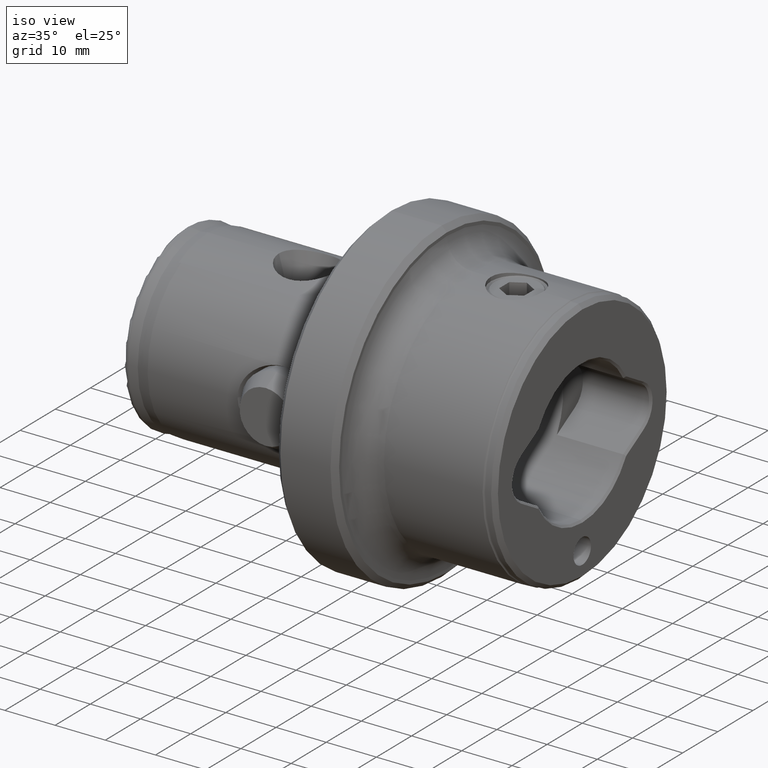
[diagram: clean part render]
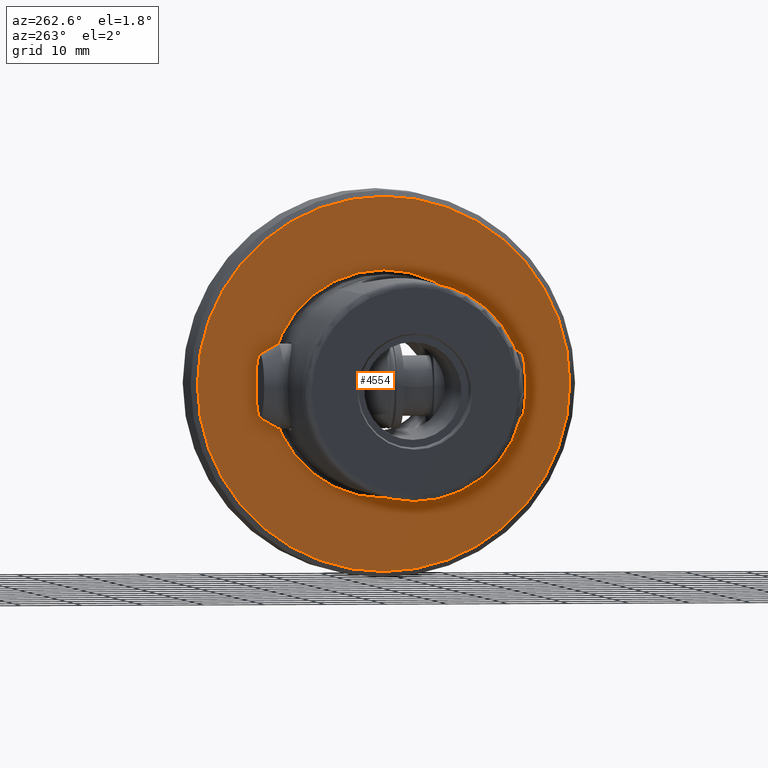
[diagram: tour spotlight — one face highlighted and labeled with its STEP entity id]
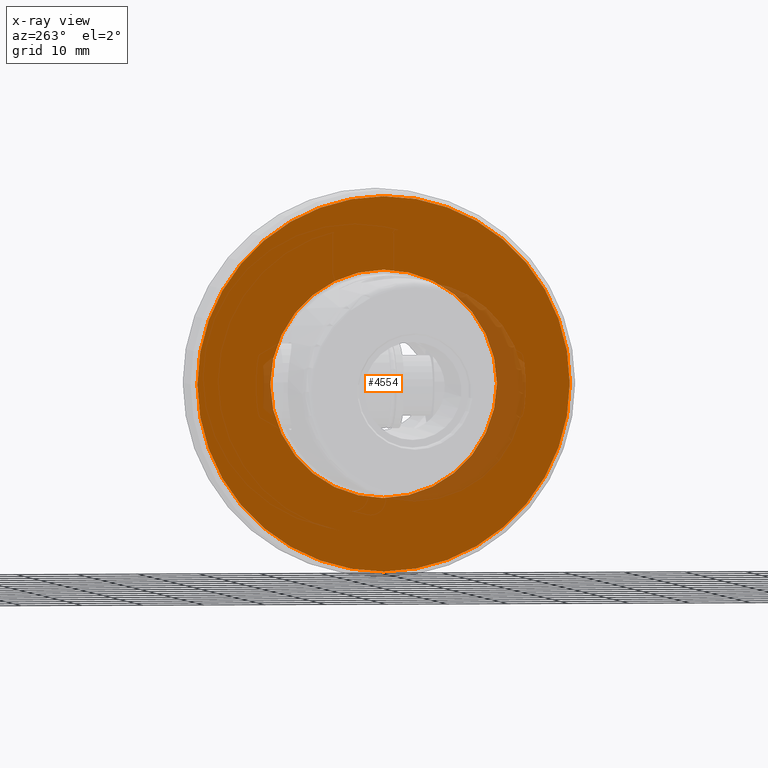
[diagram: x-ray of the same camera — body ghosted, this tour face saturated]
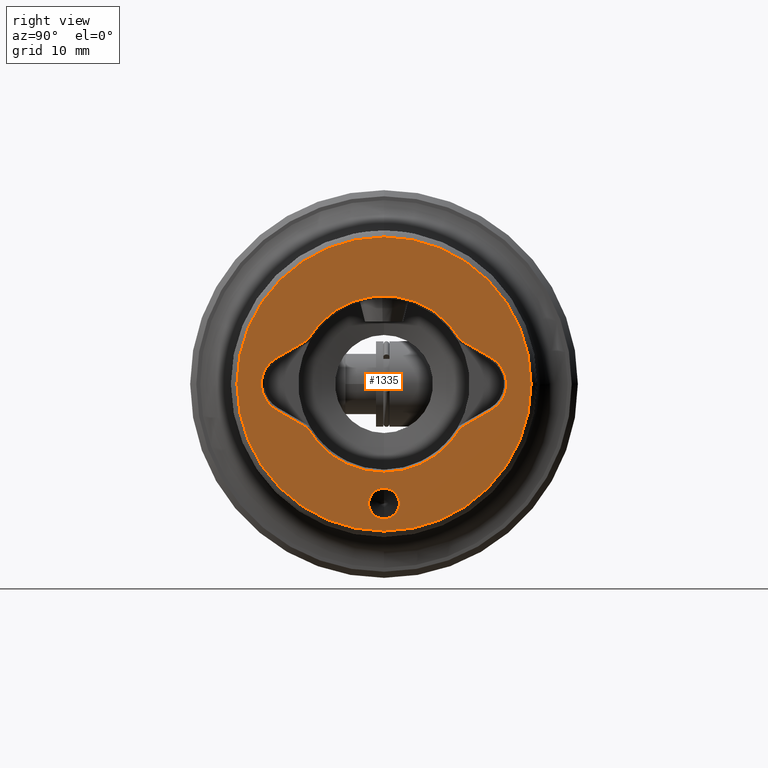
[diagram: tour spotlight — one face highlighted and labeled with its STEP entity id]
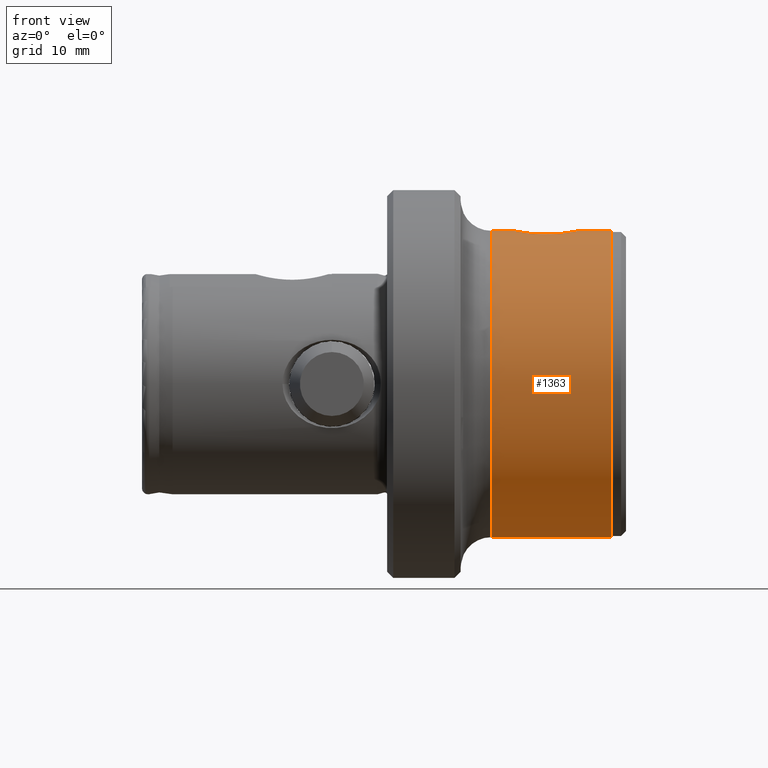
[diagram: tour spotlight — one face highlighted and labeled with its STEP entity id]
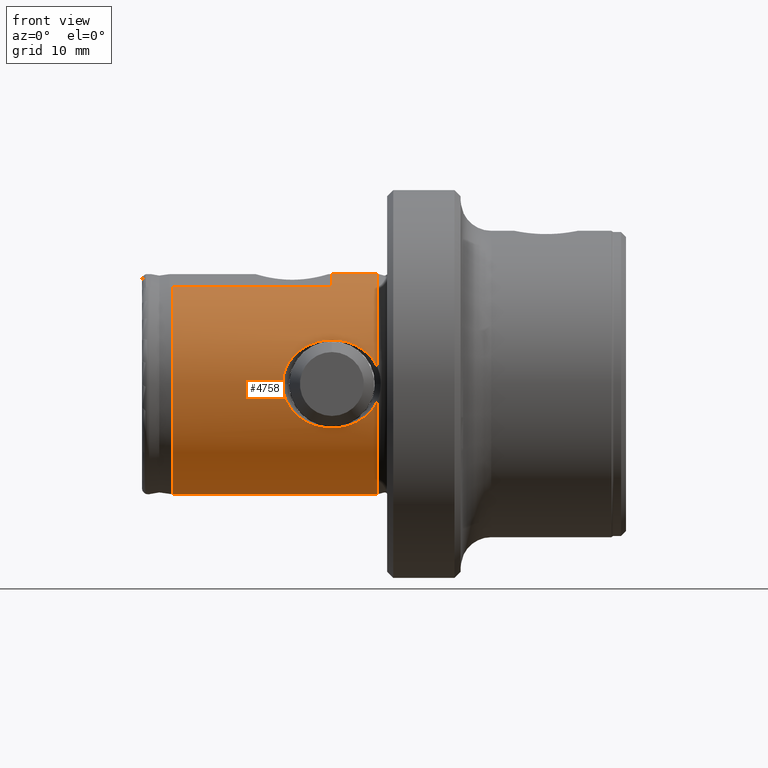
[diagram: tour spotlight — one face highlighted and labeled with its STEP entity id]
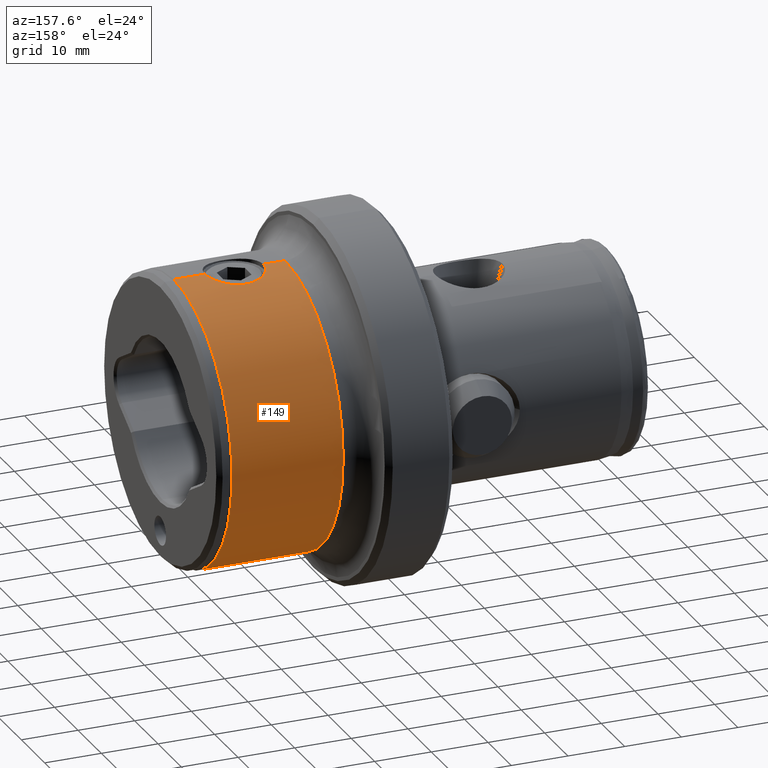
[diagram: tour spotlight — one face highlighted and labeled with its STEP entity id]
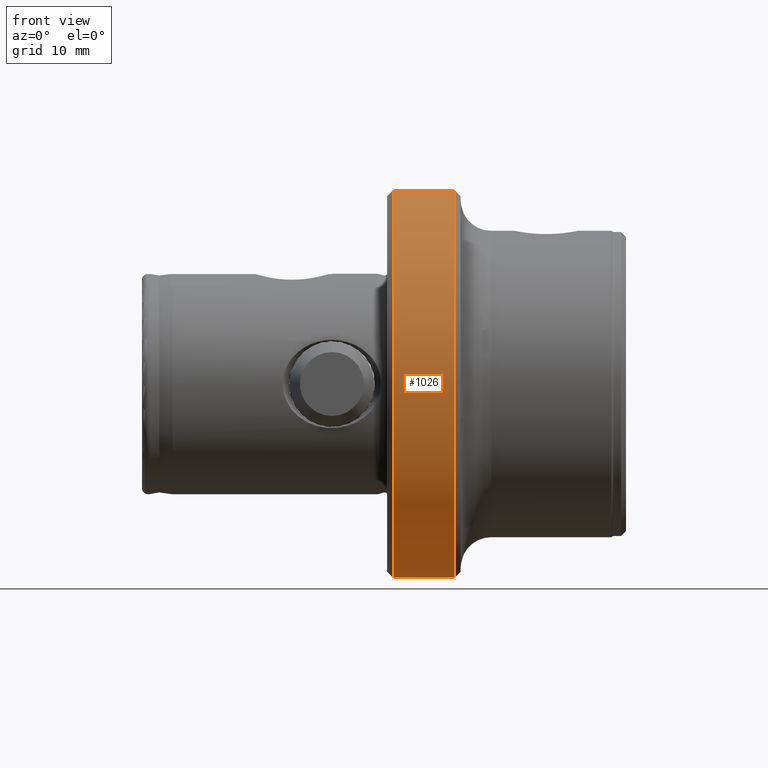
[diagram: tour spotlight — one face highlighted and labeled with its STEP entity id]
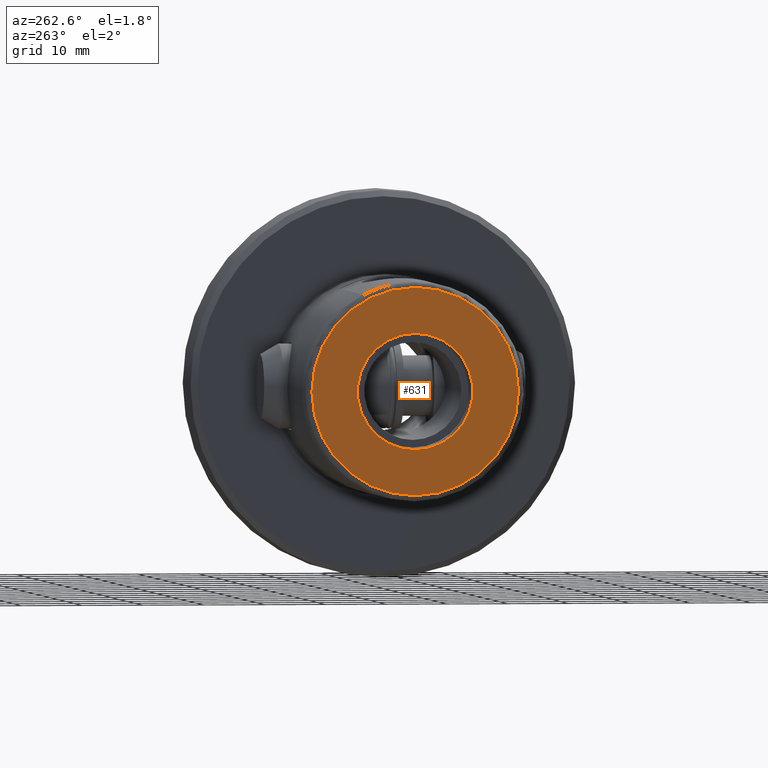
[diagram: tour spotlight — one face highlighted and labeled with its STEP entity id]
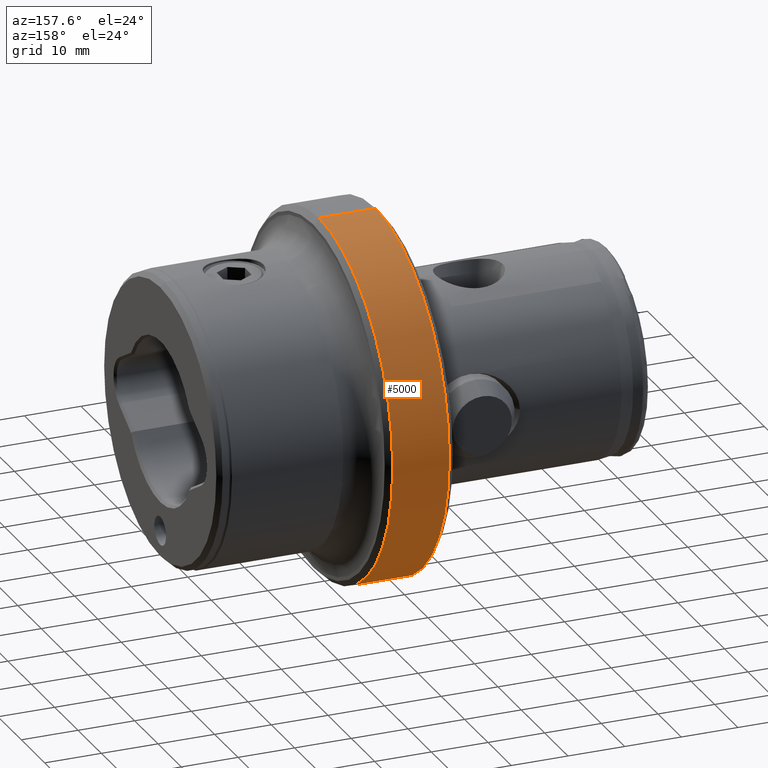
[diagram: tour spotlight — one face highlighted and labeled with its STEP entity id]
A machine part: a face-by-face anatomy tour. The part has 146 B-rep faces; the first image is the clean iso view, then the 8 largest visible faces are spotlighted one at a time (largest first), each with its STEP entity span.

Face 1 — auxiliary view, entity #4554. An x-ray twin of the same camera follows (body ghosted, this face saturated) — the face is partly hidden behind the body. In plain terms, the highlighted planar face has unit normal (1, 0, 0).
Definition (entity closure, byte-faithful):
#18 = ORIENTED_EDGE ( 'NONE', *, *, #1553, .T. ) ;
#161 = EDGE_LOOP ( 'NONE', ( #18, #696 ) ) ;
#508 = DIRECTION ( 'NONE',  ( -1.000000000000000000, -0.0000000000000000000, -0.0000000000000000000 ) ) ;
#528 = CARTESIAN_POINT ( 'NONE',  ( 40.00000000000000000, 0.0000000000000000000, 0.0000000000000000000 ) ) ;
#643 = EDGE_CURVE ( 'NONE', #2377, #3764, #852, .T. ) ;
#696 = ORIENTED_EDGE ( 'NONE', *, *, #4631, .T. ) ;
#846 = CARTESIAN_POINT ( 'NONE',  ( 40.00000000000000000, 18.63903132955060100, 0.0000000000000000000 ) ) ;
#852 = CIRCLE ( 'NONE', #2591, 18.63903132955060100 ) ;
#935 = DIRECTION ( 'NONE',  ( 0.0000000000000000000, 0.0000000000000000000, 1.000000000000000000 ) ) ;
#1037 = VERTEX_POINT ( 'NONE', #4870 ) ;
#1098 = CIRCLE ( 'NONE', #4448, 18.63903132955060100 ) ;
#1152 = DIRECTION ( 'NONE',  ( -1.000000000000000000, -0.0000000000000000000, -0.0000000000000000000 ) ) ;
#1259 = ORIENTED_EDGE ( 'NONE', *, *, #643, .F. ) ;
#1471 = AXIS2_PLACEMENT_3D ( 'NONE', #846, #4459, #2041 ) ;
#1500 = AXIS2_PLACEMENT_3D ( 'NONE', #3557, #1152, #3956 ) ;
#1502 = FACE_OUTER_BOUND ( 'NONE', #161, .T. ) ;
#1553 = EDGE_CURVE ( 'NONE', #4884, #1037, #3606, .T. ) ;
#1638 = CARTESIAN_POINT ( 'NONE',  ( 40.00000000000000000, 0.0000000000000000000, 0.0000000000000000000 ) ) ;
#1671 = ORIENTED_EDGE ( 'NONE', *, *, #1752, .F. ) ;
#1752 = EDGE_CURVE ( 'NONE', #3764, #2377, #1098, .T. ) ;
#1835 = CARTESIAN_POINT ( 'NONE',  ( 40.00000000000000000, 0.0000000000000000000, 18.63903132955060100 ) ) ;
#2028 = DIRECTION ( 'NONE',  ( 0.0000000000000000000, 0.0000000000000000000, 1.000000000000000000 ) ) ;
#2041 = DIRECTION ( 'NONE',  ( 0.0000000000000000000, 0.0000000000000000000, -1.000000000000000000 ) ) ;
#2377 = VERTEX_POINT ( 'NONE', #1835 ) ;
#2591 = AXIS2_PLACEMENT_3D ( 'NONE', #528, #3328, #935 ) ;
#2638 = EDGE_LOOP ( 'NONE', ( #1259, #1671 ) ) ;
#2864 = CIRCLE ( 'NONE', #3616, 30.63500000000000200 ) ;
#2914 = CARTESIAN_POINT ( 'NONE',  ( 40.00000000000000000, 0.0000000000000000000, 0.0000000000000000000 ) ) ;
#3152 = CARTESIAN_POINT ( 'NONE',  ( 40.00000000000000000, 0.0000000000000000000, -30.63500000000000200 ) ) ;
#3310 = DIRECTION ( 'NONE',  ( 0.0000000000000000000, 0.0000000000000000000, 1.000000000000000000 ) ) ;
#3328 = DIRECTION ( 'NONE',  ( -1.000000000000000000, -0.0000000000000000000, -0.0000000000000000000 ) ) ;
#3557 = CARTESIAN_POINT ( 'NONE',  ( 40.00000000000000000, 0.0000000000000000000, 0.0000000000000000000 ) ) ;
#3606 = CIRCLE ( 'NONE', #1500, 30.63500000000000200 ) ;
#3616 = AXIS2_PLACEMENT_3D ( 'NONE', #2914, #508, #3310 ) ;
#3764 = VERTEX_POINT ( 'NONE', #4223 ) ;
#3956 = DIRECTION ( 'NONE',  ( 0.0000000000000000000, 0.0000000000000000000, 1.000000000000000000 ) ) ;
#4057 = PLANE ( 'NONE',  #1471 ) ;
#4223 = CARTESIAN_POINT ( 'NONE',  ( 40.00000000000000000, 2.282623005694137900E-015, -18.63903132955060100 ) ) ;
#4448 = AXIS2_PLACEMENT_3D ( 'NONE', #1638, #4449, #2028 ) ;
#4449 = DIRECTION ( 'NONE',  ( -1.000000000000000000, -0.0000000000000000000, -0.0000000000000000000 ) ) ;
#4459 = DIRECTION ( 'NONE',  ( 1.000000000000000000, 0.0000000000000000000, 0.0000000000000000000 ) ) ;
#4554 = ADVANCED_FACE ( 'NONE', ( #4903, #1502 ), #4057, .F. ) ;
#4631 = EDGE_CURVE ( 'NONE', #1037, #4884, #2864, .T. ) ;
#4870 = CARTESIAN_POINT ( 'NONE',  ( 40.00000000000000000, 3.812937809145284600E-015, 30.63500000000000200 ) ) ;
#4884 = VERTEX_POINT ( 'NONE', #3152 ) ;
#4903 = FACE_BOUND ( 'NONE', #2638, .T. ) ;

Face 2 — right view, entity #1335. In plain terms, the highlighted planar face has unit normal (1, 0, 0).
Definition (entity closure, byte-faithful):
#189 = DIRECTION ( 'NONE',  ( 0.0000000000000000000, 0.0000000000000000000, -1.000000000000000000 ) ) ;
#201 = EDGE_CURVE ( 'NONE', #5128, #2615, #4777, .T. ) ;
#224 = LINE ( 'NONE', #2203, #3674 ) ;
#437 = CARTESIAN_POINT ( 'NONE',  ( 79.00000000000000000, 0.0000000000000000000, 0.0000000000000000000 ) ) ;
#466 = FACE_BOUND ( 'NONE', #4799, .T. ) ;
#491 = DIRECTION ( 'NONE',  ( -1.000000000000000000, -0.0000000000000000000, -0.0000000000000000000 ) ) ;
#524 = CARTESIAN_POINT ( 'NONE',  ( 79.00000000000000000, 0.0000000000000000000, -14.40000000000000000 ) ) ;
#543 = LINE ( 'NONE', #4990, #3618 ) ;
#580 = ORIENTED_EDGE ( 'NONE', *, *, #3998, .T. ) ;
#586 = CARTESIAN_POINT ( 'NONE',  ( 79.00000000000000000, 0.0000000000000000000, 0.0000000000000000000 ) ) ;
#652 = ORIENTED_EDGE ( 'NONE', *, *, #2107, .F. ) ;
#716 = EDGE_LOOP ( 'NONE', ( #755, #4912 ) ) ;
#741 = LINE ( 'NONE', #1554, #2475 ) ;
#755 = ORIENTED_EDGE ( 'NONE', *, *, #4171, .F. ) ;
#762 = CIRCLE ( 'NONE', #3008, 24.00000000000000000 ) ;
#812 = CARTESIAN_POINT ( 'NONE',  ( 79.00000000000000000, 17.55000000000001100, 4.243524478543749400 ) ) ;
#836 = EDGE_CURVE ( 'NONE', #1833, #3170, #224, .T. ) ;
#841 = DIRECTION ( 'NONE',  ( 0.0000000000000000000, 0.0000000000000000000, 1.000000000000000000 ) ) ;
#953 = DIRECTION ( 'NONE',  ( 1.000000000000000000, -0.0000000000000000000, -0.0000000000000000000 ) ) ;
#989 = PLANE ( 'NONE',  #3193 ) ;
#1000 = DIRECTION ( 'NONE',  ( 0.0000000000000000000, -3.552713678800500900E-015, -1.000000000000000000 ) ) ;
#1049 = ORIENTED_EDGE ( 'NONE', *, *, #1171, .T. ) ;
#1123 = DIRECTION ( 'NONE',  ( 1.000000000000000000, -0.0000000000000000000, -0.0000000000000000000 ) ) ;
#1171 = EDGE_CURVE ( 'NONE', #5125, #5103, #4301, .T. ) ;
#1186 = CARTESIAN_POINT ( 'NONE',  ( 79.00000000000000000, 0.0000000000000000000, 24.00000000000000000 ) ) ;
#1193 = CARTESIAN_POINT ( 'NONE',  ( 79.00000000000000000, 0.0000000000000000000, 0.0000000000000000000 ) ) ;
#1252 = AXIS2_PLACEMENT_3D ( 'NONE', #3345, #953, #3757 ) ;
#1254 = ORIENTED_EDGE ( 'NONE', *, *, #3699, .T. ) ;
#1335 = ADVANCED_FACE ( 'NONE', ( #1421, #466, #3543 ), #989, .T. ) ;
#1337 = CIRCLE ( 'NONE', #1252, 2.499999999999998700 ) ;
#1365 = CARTESIAN_POINT ( 'NONE',  ( 79.00000000000000000, 17.55000000000000400, -4.243524478543750300 ) ) ;
#1391 = VERTEX_POINT ( 'NONE', #1429 ) ;
#1392 = DIRECTION ( 'NONE',  ( 0.0000000000000000000, 0.0000000000000000000, -1.000000000000000000 ) ) ;
#1421 = FACE_BOUND ( 'NONE', #2005, .T. ) ;
#1429 = CARTESIAN_POINT ( 'NONE',  ( 79.00000000000000000, 2.988138189919542100E-015, -24.00000000000000000 ) ) ;
#1506 = AXIS2_PLACEMENT_3D ( 'NONE', #586, #3388, #1000 ) ;
#1554 = CARTESIAN_POINT ( 'NONE',  ( 79.00000000000000000, 17.55000000000001100, 4.243524478543749400 ) ) ;
#1717 = DIRECTION ( 'NONE',  ( 0.0000000000000000000, 0.8660254037844384900, 0.5000000000000002200 ) ) ;
#1720 = VERTEX_POINT ( 'NONE', #812 ) ;
#1724 = CARTESIAN_POINT ( 'NONE',  ( 79.00000000000000000, -12.49142840859130400, 7.164092148558538900 ) ) ;
#1796 = VECTOR ( 'NONE', #1717, 1000.000000000000000 ) ;
#1832 = AXIS2_PLACEMENT_3D ( 'NONE', #3517, #1123, #3924 ) ;
#1833 = VERTEX_POINT ( 'NONE', #1365 ) ;
#1870 = ORIENTED_EDGE ( 'NONE', *, *, #201, .T. ) ;
#1935 = CARTESIAN_POINT ( 'NONE',  ( 79.00000000000000000, 0.0000000000000000000, 0.0000000000000000000 ) ) ;
#1936 = CARTESIAN_POINT ( 'NONE',  ( 79.00000000000000000, -15.10000000000000500, -6.938893903907228400E-015 ) ) ;
#1954 = CARTESIAN_POINT ( 'NONE',  ( 79.00000000000000000, 3.061616997868381200E-016, -17.00000000000000000 ) ) ;
#1979 = AXIS2_PLACEMENT_3D ( 'NONE', #1193, #491, #4386 ) ;
#2005 = EDGE_LOOP ( 'NONE', ( #2217, #652 ) ) ;
#2107 = EDGE_CURVE ( 'NONE', #2635, #2787, #3979, .T. ) ;
#2130 = CIRCLE ( 'NONE', #1506, 14.39999999999999900 ) ;
#2203 = CARTESIAN_POINT ( 'NONE',  ( 79.00000000000000000, 12.39736786006797700, -7.218398031568600700 ) ) ;
#2211 = ORIENTED_EDGE ( 'NONE', *, *, #4248, .T. ) ;
#2217 = ORIENTED_EDGE ( 'NONE', *, *, #2982, .F. ) ;
#2273 = CARTESIAN_POINT ( 'NONE',  ( 79.00000000000000000, 12.49142840859129500, 7.164092148558554000 ) ) ;
#2291 = CARTESIAN_POINT ( 'NONE',  ( 79.00000000000000000, 15.10000000000000500, -6.938893903907228400E-015 ) ) ;
#2324 = CIRCLE ( 'NONE', #4412, 4.900000000000000400 ) ;
#2335 = DIRECTION ( 'NONE',  ( 0.0000000000000000000, 0.0000000000000000000, 1.000000000000000000 ) ) ;
#2336 = DIRECTION ( 'NONE',  ( 0.0000000000000000000, 0.0000000000000000000, -1.000000000000000000 ) ) ;
#2384 = CARTESIAN_POINT ( 'NONE',  ( 79.00000000000000000, -17.55000000000001500, -4.243524478543760900 ) ) ;
#2475 = VECTOR ( 'NONE', #3964, 1000.000000000000000 ) ;
#2491 = CARTESIAN_POINT ( 'NONE',  ( 79.00000000000000000, -12.39736786006797700, 7.218398031568606000 ) ) ;
#2532 = VERTEX_POINT ( 'NONE', #2273 ) ;
#2547 = EDGE_CURVE ( 'NONE', #1720, #1833, #4755, .T. ) ;
#2593 = DIRECTION ( 'NONE',  ( -1.000000000000000000, -0.0000000000000000000, -0.0000000000000000000 ) ) ;
#2615 = VERTEX_POINT ( 'NONE', #3546 ) ;
#2618 = DIRECTION ( 'NONE',  ( 0.0000000000000000000, -0.8660254037844386000, -0.5000000000000001100 ) ) ;
#2620 = EDGE_CURVE ( 'NONE', #4946, #5125, #2324, .T. ) ;
#2635 = VERTEX_POINT ( 'NONE', #1954 ) ;
#2700 = DIRECTION ( 'NONE',  ( 0.0000000000000000000, 0.0000000000000000000, -1.000000000000000000 ) ) ;
#2787 = VERTEX_POINT ( 'NONE', #4051 ) ;
#2954 = DIRECTION ( 'NONE',  ( 0.0000000000000000000, -0.8660254037844403700, 0.4999999999999969500 ) ) ;
#2982 = EDGE_CURVE ( 'NONE', #2787, #2635, #1337, .T. ) ;
#3008 = AXIS2_PLACEMENT_3D ( 'NONE', #1935, #4787, #2335 ) ;
#3167 = CARTESIAN_POINT ( 'NONE',  ( 79.00000000000000000, 12.49142840859130600, -7.164092148558532700 ) ) ;
#3170 = VERTEX_POINT ( 'NONE', #3167 ) ;
#3193 = AXIS2_PLACEMENT_3D ( 'NONE', #3755, #3791, #1392 ) ;
#3214 = VERTEX_POINT ( 'NONE', #1186 ) ;
#3241 = DIRECTION ( 'NONE',  ( -1.000000000000000000, -0.0000000000000000000, -0.0000000000000000000 ) ) ;
#3345 = CARTESIAN_POINT ( 'NONE',  ( 79.00000000000000000, 0.0000000000000000000, -19.50000000000000000 ) ) ;
#3388 = DIRECTION ( 'NONE',  ( -1.000000000000000000, -0.0000000000000000000, -0.0000000000000000000 ) ) ;
#3517 = CARTESIAN_POINT ( 'NONE',  ( 79.00000000000000000, 0.0000000000000000000, -19.50000000000000000 ) ) ;
#3543 = FACE_OUTER_BOUND ( 'NONE', #716, .T. ) ;
#3546 = CARTESIAN_POINT ( 'NONE',  ( 79.00000000000000000, -12.49142840859129100, -7.164092148558556700 ) ) ;
#3597 = ORIENTED_EDGE ( 'NONE', *, *, #5232, .T. ) ;
#3618 = VECTOR ( 'NONE', #2954, 1000.000000000000000 ) ;
#3674 = VECTOR ( 'NONE', #2618, 1000.000000000000100 ) ;
#3699 = EDGE_CURVE ( 'NONE', #3170, #5128, #2130, .T. ) ;
#3755 = CARTESIAN_POINT ( 'NONE',  ( 79.00000000000000000, 0.0000000000000000000, 0.0000000000000000000 ) ) ;
#3757 = DIRECTION ( 'NONE',  ( 0.0000000000000000000, 0.0000000000000000000, -1.000000000000000000 ) ) ;
#3791 = DIRECTION ( 'NONE',  ( 1.000000000000000000, 0.0000000000000000000, 0.0000000000000000000 ) ) ;
#3886 = AXIS2_PLACEMENT_3D ( 'NONE', #2291, #5144, #2700 ) ;
#3924 = DIRECTION ( 'NONE',  ( 0.0000000000000000000, 0.0000000000000000000, -1.000000000000000000 ) ) ;
#3947 = EDGE_CURVE ( 'NONE', #1391, #3214, #762, .T. ) ;
#3964 = DIRECTION ( 'NONE',  ( 0.0000000000000000000, 0.8660254037844393700, -0.4999999999999986700 ) ) ;
#3979 = CIRCLE ( 'NONE', #1832, 2.499999999999998700 ) ;
#3991 = ORIENTED_EDGE ( 'NONE', *, *, #2547, .T. ) ;
#3998 = EDGE_CURVE ( 'NONE', #2532, #1720, #741, .T. ) ;
#4051 = CARTESIAN_POINT ( 'NONE',  ( 79.00000000000000000, 0.0000000000000000000, -22.00000000000000000 ) ) ;
#4054 = CIRCLE ( 'NONE', #5069, 14.40000000000000000 ) ;
#4171 = EDGE_CURVE ( 'NONE', #3214, #1391, #5219, .T. ) ;
#4248 = EDGE_CURVE ( 'NONE', #2615, #4946, #543, .T. ) ;
#4301 = LINE ( 'NONE', #2491, #1796 ) ;
#4386 = DIRECTION ( 'NONE',  ( 0.0000000000000000000, 0.0000000000000000000, -1.000000000000000000 ) ) ;
#4412 = AXIS2_PLACEMENT_3D ( 'NONE', #1936, #4788, #2336 ) ;
#4469 = ORIENTED_EDGE ( 'NONE', *, *, #836, .T. ) ;
#4652 = AXIS2_PLACEMENT_3D ( 'NONE', #437, #3241, #841 ) ;
#4755 = CIRCLE ( 'NONE', #3886, 4.899999999999993200 ) ;
#4777 = CIRCLE ( 'NONE', #1979, 14.39999999999999900 ) ;
#4787 = DIRECTION ( 'NONE',  ( -1.000000000000000000, -0.0000000000000000000, -0.0000000000000000000 ) ) ;
#4788 = DIRECTION ( 'NONE',  ( -1.000000000000000000, -0.0000000000000000000, -0.0000000000000000000 ) ) ;
#4799 = EDGE_LOOP ( 'NONE', ( #5126, #1049, #3597, #580, #3991, #4469, #1254, #1870, #2211 ) ) ;
#4912 = ORIENTED_EDGE ( 'NONE', *, *, #3947, .F. ) ;
#4937 = CARTESIAN_POINT ( 'NONE',  ( 79.00000000000000000, -17.55000000000000800, 4.243524478543743200 ) ) ;
#4946 = VERTEX_POINT ( 'NONE', #2384 ) ;
#4990 = CARTESIAN_POINT ( 'NONE',  ( 79.00000000000000000, -17.55000000000001100, -4.243524478543762700 ) ) ;
#5040 = CARTESIAN_POINT ( 'NONE',  ( 79.00000000000000000, 0.0000000000000000000, 0.0000000000000000000 ) ) ;
#5069 = AXIS2_PLACEMENT_3D ( 'NONE', #5040, #2593, #189 ) ;
#5103 = VERTEX_POINT ( 'NONE', #1724 ) ;
#5125 = VERTEX_POINT ( 'NONE', #4937 ) ;
#5126 = ORIENTED_EDGE ( 'NONE', *, *, #2620, .T. ) ;
#5128 = VERTEX_POINT ( 'NONE', #524 ) ;
#5144 = DIRECTION ( 'NONE',  ( -1.000000000000000000, -0.0000000000000000000, -0.0000000000000000000 ) ) ;
#5219 = CIRCLE ( 'NONE', #4652, 24.00000000000000000 ) ;
#5232 = EDGE_CURVE ( 'NONE', #5103, #2532, #4054, .T. ) ;

Face 3 — front view, entity #1363. In plain terms, the highlighted cylindrical surface (partial cylindrical patch) has radius 25 mm, axis along (-1, -0, -0).
Definition (entity closure, byte-faithful):
#5 = CARTESIAN_POINT ( 'NONE',  ( 61.85643267757570400, -3.142852748992869500, 24.80324739742906100 ) ) ;
#148 = CARTESIAN_POINT ( 'NONE',  ( 57.00000000000000000, 3.061616997868383000E-015, -25.00000000000000000 ) ) ;
#185 = DIRECTION ( 'NONE',  ( -1.000000000000000000, -0.0000000000000000000, -0.0000000000000000000 ) ) ;
#221 = CARTESIAN_POINT ( 'NONE',  ( 60.79999999999999000, 8.927507309949981800E-022, 25.00000000000000000 ) ) ;
#229 = EDGE_LOOP ( 'NONE', ( #1345, #5074, #4255, #1102, #589, #2808 ) ) ;
#339 = FACE_OUTER_BOUND ( 'NONE', #229, .T. ) ;
#369 = VERTEX_POINT ( 'NONE', #889 ) ;
#372 = CARTESIAN_POINT ( 'NONE',  ( 70.41833736726576400, -2.582549426209666400, 24.86784358310558200 ) ) ;
#385 = CARTESIAN_POINT ( 'NONE',  ( 65.61512242853780200, -5.150132743915563100, 24.46377184202310000 ) ) ;
#407 = CARTESIAN_POINT ( 'NONE',  ( 61.32198393050201400, -2.284184692337028400, 24.89738896968492900 ) ) ;
#430 = CARTESIAN_POINT ( 'NONE',  ( 57.00000000000000000, 0.0000000000000000000, 25.00000000000000000 ) ) ;
#434 = VERTEX_POINT ( 'NONE', #1660 ) ;
#507 = VERTEX_POINT ( 'NONE', #430 ) ;
#589 = ORIENTED_EDGE ( 'NONE', *, *, #1890, .T. ) ;
#724 = DIRECTION ( 'NONE',  ( 1.000000000000000000, 0.0000000000000000000, 0.0000000000000000000 ) ) ;
#766 = CARTESIAN_POINT ( 'NONE',  ( 71.09999999999999400, -2.383281884090194100E-016, 25.00000000000000000 ) ) ;
#783 = CARTESIAN_POINT ( 'NONE',  ( 69.82758865378610800, -3.405732504768697500, 24.76808990164205300 ) ) ;
#801 = CARTESIAN_POINT ( 'NONE',  ( 64.61155272702500000, -4.984448044311590400, 24.49815943661874600 ) ) ;
#811 = CARTESIAN_POINT ( 'NONE',  ( 60.96610167834805300, -1.340612106738114900, 24.96622801772688000 ) ) ;
#889 = CARTESIAN_POINT ( 'NONE',  ( 76.63431457505076600, 3.061616997868383000E-015, -25.00000000000000000 ) ) ;
#942 = DIRECTION ( 'NONE',  ( -1.000000000000000000, -0.0000000000000000000, -0.0000000000000000000 ) ) ;
#1007 = DIRECTION ( 'NONE',  ( -1.000000000000000000, -0.0000000000000000000, -0.0000000000000000000 ) ) ;
#1023 = DIRECTION ( 'NONE',  ( -1.000000000000000000, -0.0000000000000000000, -0.0000000000000000000 ) ) ;
#1102 = ORIENTED_EDGE ( 'NONE', *, *, #3587, .T. ) ;
#1182 = CARTESIAN_POINT ( 'NONE',  ( 69.09502907368929000, -4.092174025654120600, 24.66354829000341900 ) ) ;
#1195 = CARTESIAN_POINT ( 'NONE',  ( 63.82156818703034400, -4.692638635592532900, 24.55572217660355200 ) ) ;
#1211 = CARTESIAN_POINT ( 'NONE',  ( 60.79999999999999700, -0.3366141758356393500, 25.00000000000000400 ) ) ;
#1345 = ORIENTED_EDGE ( 'NONE', *, *, #2004, .F. ) ;
#1363 = ADVANCED_FACE ( 'NONE', ( #339 ), #2220, .T. ) ;
#1381 = EDGE_CURVE ( 'NONE', #369, #434, #4359, .T. ) ;
#1415 = VECTOR ( 'NONE', #185, 1000.000000000000000 ) ;
#1560 = CARTESIAN_POINT ( 'NONE',  ( 71.09999999999999400, -2.383281884090194100E-016, 25.00000000000000000 ) ) ;
#1578 = VERTEX_POINT ( 'NONE', #766 ) ;
#1585 = CARTESIAN_POINT ( 'NONE',  ( 68.23395827419094000, -4.628008233646510500, 24.56824540919774000 ) ) ;
#1606 = CARTESIAN_POINT ( 'NONE',  ( 63.36997134356912700, -4.460313100709033300, 24.59902767005139200 ) ) ;
#1647 = B_SPLINE_CURVE_WITH_KNOTS ( 'NONE', 3,
 ( #1560, #3972, #4378, #1963, #4812, #2361, #5212, #2766, #372, #3180, #783, #3583, #1182, #3989, #1585, #4390, #1982, #4829, #2374, #5228, #2786, #385, #3191, #801, #3602, #1195, #4006, #1606, #4406, #1992, #4850, #2391, #5, #2804, #407, #3208, #811, #3624, #1211, #4023 ),
 .UNSPECIFIED., .F., .F.,
 ( 4, 2, 2, 2, 2, 2, 2, 2, 2, 2, 2, 2, 2, 2, 2, 2, 2, 2, 2, 4 ),
 ( 2.315171964287159100E-019, 0.001009033924825389300, 0.001513550887238083400, 0.002018067849650777800, 0.003027101774476180600, 0.004036135699301583400, 0.005045169624126986600, 0.006054203548952390700, 0.006558720511365092300, 0.007063237473777793900, 0.008072271398603198000, 0.009081305323428601200, 0.01009033924825400400, 0.01059485621066670400, 0.01109937317307940800, 0.01210840709790484600, 0.01311744102273029700, 0.01412647494755574900, 0.01513550887238120300, 0.01614454279720665600 ),
 .UNSPECIFIED. ) ;
#1660 = CARTESIAN_POINT ( 'NONE',  ( 76.63431457505076600, 0.0000000000000000000, 25.00000000000000000 ) ) ;
#1890 = EDGE_CURVE ( 'NONE', #3444, #507, #3541, .T. ) ;
#1925 = AXIS2_PLACEMENT_3D ( 'NONE', #3120, #724, #3526 ) ;
#1963 = CARTESIAN_POINT ( 'NONE',  ( 70.96785794695985300, -1.171266871514128800, 24.97309278332148000 ) ) ;
#1982 = CARTESIAN_POINT ( 'NONE',  ( 67.61133211513447300, -4.877597122014433900, 24.51961581005332000 ) ) ;
#1992 = CARTESIAN_POINT ( 'NONE',  ( 62.80842111034443300, -4.094532351662050700, 24.66314122625848200 ) ) ;
#2004 = EDGE_CURVE ( 'NONE', #369, #4259, #4243, .T. ) ;
#2184 = CARTESIAN_POINT ( 'NONE',  ( 79.00000000000000000, 0.0000000000000000000, 0.0000000000000000000 ) ) ;
#2220 = CYLINDRICAL_SURFACE ( 'NONE', #4008, 25.00000000000000000 ) ;
#2361 = CARTESIAN_POINT ( 'NONE',  ( 70.82848566406556800, -1.658780096566830000, 24.94543635256344100 ) ) ;
#2374 = CARTESIAN_POINT ( 'NONE',  ( 67.12269480266255100, -5.017573793023018400, 24.49132699947186600 ) ) ;
#2383 = VECTOR ( 'NONE', #3270, 1000.000000000000000 ) ;
#2391 = CARTESIAN_POINT ( 'NONE',  ( 62.06880755433800800, -3.401959705173361700, 24.76863267878178500 ) ) ;
#2480 = CARTESIAN_POINT ( 'NONE',  ( 79.00000000000000000, 0.0000000000000000000, 25.00000000000000000 ) ) ;
#2605 = CARTESIAN_POINT ( 'NONE',  ( 79.00000000000000000, 3.061616997868383000E-015, -25.00000000000000000 ) ) ;
#2766 = CARTESIAN_POINT ( 'NONE',  ( 70.57662655291807100, -2.287074473920681900, 24.89712890570479300 ) ) ;
#2786 = CARTESIAN_POINT ( 'NONE',  ( 66.28894807391435500, -5.149866451764493600, 24.46382790054541400 ) ) ;
#2804 = CARTESIAN_POINT ( 'NONE',  ( 61.48363882009437700, -2.585814114684974000, 24.86749223834642600 ) ) ;
#2808 = ORIENTED_EDGE ( 'NONE', *, *, #3906, .T. ) ;
#2884 = EDGE_CURVE ( 'NONE', #434, #1578, #4545, .T. ) ;
#2887 = CIRCLE ( 'NONE', #1925, 25.00000000000000000 ) ;
#2989 = CARTESIAN_POINT ( 'NONE',  ( 79.00000000000000000, 0.0000000000000000000, 25.00000000000000000 ) ) ;
#3120 = CARTESIAN_POINT ( 'NONE',  ( 57.00000000000000000, 0.0000000000000000000, 0.0000000000000000000 ) ) ;
#3180 = CARTESIAN_POINT ( 'NONE',  ( 70.04453260843395400, -3.141719765509067000, 24.80340305134824400 ) ) ;
#3191 = CARTESIAN_POINT ( 'NONE',  ( 65.27279556843932100, -5.116400841104066900, 24.47094155363833000 ) ) ;
#3208 = CARTESIAN_POINT ( 'NONE',  ( 61.06381869865324300, -1.661705370577954100, 24.94666736215257100 ) ) ;
#3270 = DIRECTION ( 'NONE',  ( -1.000000000000000000, -0.0000000000000000000, -0.0000000000000000000 ) ) ;
#3279 = VECTOR ( 'NONE', #942, 1000.000000000000000 ) ;
#3420 = CARTESIAN_POINT ( 'NONE',  ( 76.63431457505076600, 0.0000000000000000000, 0.0000000000000000000 ) ) ;
#3444 = VERTEX_POINT ( 'NONE', #221 ) ;
#3472 = AXIS2_PLACEMENT_3D ( 'NONE', #3420, #1023, #3833 ) ;
#3526 = DIRECTION ( 'NONE',  ( 0.0000000000000000000, 0.0000000000000000000, 1.000000000000000000 ) ) ;
#3541 = LINE ( 'NONE', #2989, #1415 ) ;
#3583 = CARTESIAN_POINT ( 'NONE',  ( 69.35374217176395500, -3.879335882617561000, 24.69834092362676600 ) ) ;
#3587 = EDGE_CURVE ( 'NONE', #1578, #3444, #1647, .T. ) ;
#3602 = CARTESIAN_POINT ( 'NONE',  ( 64.29006652085539000, -4.886863844193214000, 24.51807410225156000 ) ) ;
#3624 = CARTESIAN_POINT ( 'NONE',  ( 60.83373749270865700, -0.6784845302457130900, 24.99298783651287800 ) ) ;
#3833 = DIRECTION ( 'NONE',  ( 0.0000000000000000000, 0.0000000000000000000, 1.000000000000000000 ) ) ;
#3906 = EDGE_CURVE ( 'NONE', #507, #4259, #2887, .T. ) ;
#3972 = CARTESIAN_POINT ( 'NONE',  ( 71.09999999999998000, -0.3412562324752582100, 25.00000000000000000 ) ) ;
#3989 = CARTESIAN_POINT ( 'NONE',  ( 68.53230820625772400, -4.468644140954080700, 24.59812436042808100 ) ) ;
#4006 = CARTESIAN_POINT ( 'NONE',  ( 63.66730437461366400, -4.619549924635849800, 24.56962176676938000 ) ) ;
#4008 = AXIS2_PLACEMENT_3D ( 'NONE', #2184, #1007, #4612 ) ;
#4023 = CARTESIAN_POINT ( 'NONE',  ( 60.79999999999999000, 8.927507309949981800E-022, 25.00000000000000000 ) ) ;
#4243 = LINE ( 'NONE', #2605, #3279 ) ;
#4255 = ORIENTED_EDGE ( 'NONE', *, *, #2884, .T. ) ;
#4259 = VERTEX_POINT ( 'NONE', #148 ) ;
#4359 = CIRCLE ( 'NONE', #3472, 25.00000000000000000 ) ;
#4378 = CARTESIAN_POINT ( 'NONE',  ( 71.06641772497100400, -0.6766295177578857100, 24.99302081562882100 ) ) ;
#4390 = CARTESIAN_POINT ( 'NONE',  ( 67.76943399311007000, -4.820815942032205600, 24.53087889431123300 ) ) ;
#4406 = CARTESIAN_POINT ( 'NONE',  ( 63.22608528625460200, -4.373881789317760400, 24.61459101172248500 ) ) ;
#4545 = LINE ( 'NONE', #2480, #2383 ) ;
#4612 = DIRECTION ( 'NONE',  ( 0.0000000000000000000, 0.0000000000000000000, 1.000000000000000000 ) ) ;
#4812 = CARTESIAN_POINT ( 'NONE',  ( 70.92691312628794300, -1.334732001804988000, 24.96487205478766200 ) ) ;
#4829 = CARTESIAN_POINT ( 'NONE',  ( 67.28845426562575900, -4.975893714729939400, 24.49985703829741400 ) ) ;
#4850 = CARTESIAN_POINT ( 'NONE',  ( 62.54726722992390400, -3.880514699281162500, 24.69818010058034800 ) ) ;
#5074 = ORIENTED_EDGE ( 'NONE', *, *, #1381, .T. ) ;
#5212 = CARTESIAN_POINT ( 'NONE',  ( 70.77079257403823900, -1.819596022598019900, 24.93418345692677500 ) ) ;
#5228 = CARTESIAN_POINT ( 'NONE',  ( 66.62374116072712100, -5.116992507600024900, 24.47081869352003700 ) ) ;

Face 4 — front view, entity #4758. In plain terms, the highlighted cylindrical surface (partial cylindrical patch) has radius 18 mm, axis along (-1, -0, -0).
Definition (entity closure, byte-faithful):
#28 = VECTOR ( 'NONE', #1214, 1000.000000000000000 ) ;
#54 = CARTESIAN_POINT ( 'NONE',  ( 25.75073583273174500, -17.14970568692032100, 5.468593516449462100 ) ) ;
#69 = CARTESIAN_POINT ( 'NONE',  ( 32.41174086432555900, -16.54411024394628900, 7.091786777001734900 ) ) ;
#90 = CARTESIAN_POINT ( 'NONE',  ( 38.22531472327443000, -17.71246892246847400, 3.229107380082117300 ) ) ;
#96 = VERTEX_POINT ( 'NONE', #5167 ) ;
#182 = CARTESIAN_POINT ( 'NONE',  ( 36.20853074206343100, -17.13760555766047100, -5.510798793975826700 ) ) ;
#195 = CARTESIAN_POINT ( 'NONE',  ( 27.81968067271641600, -16.73591214434289000, -6.628057427295310300 ) ) ;
#215 = CARTESIAN_POINT ( 'NONE',  ( 23.15995626466844500, -17.91960077692835200, -1.753618157681375000 ) ) ;
#247 = VERTEX_POINT ( 'NONE', #3738 ) ;
#249 = DIRECTION ( 'NONE',  ( -1.000000000000000000, -0.0000000000000000000, -0.0000000000000000000 ) ) ;
#293 = VECTOR ( 'NONE', #3391, 1000.000000000000000 ) ;
#460 = CARTESIAN_POINT ( 'NONE',  ( 26.65178746641845800, -16.94475705747026200, 6.076163919882772800 ) ) ;
#467 = EDGE_CURVE ( 'NONE', #2981, #247, #4712, .T. ) ;
#482 = CARTESIAN_POINT ( 'NONE',  ( 33.06632984982247300, -16.59899749722229600, 6.962452617244408300 ) ) ;
#585 = CARTESIAN_POINT ( 'NONE',  ( 35.10015966050625700, -16.89530342579888600, -6.211851895944372300 ) ) ;
#605 = CARTESIAN_POINT ( 'NONE',  ( 26.63570597471756300, -16.94814475933928200, -6.066662298802851800 ) ) ;
#626 = CARTESIAN_POINT ( 'NONE',  ( 22.98934012757171900, -17.97959825499482600, -0.8850085856029738000 ) ) ;
#645 = VERTEX_POINT ( 'NONE', #1727 ) ;
#710 = ORIENTED_EDGE ( 'NONE', *, *, #1760, .T. ) ;
#715 = CARTESIAN_POINT ( 'NONE',  ( 31.00000000000000000, -8.499999999999996400, 15.86663165262242400 ) ) ;
#722 = CIRCLE ( 'NONE', #785, 17.99999999999999600 ) ;
#785 = AXIS2_PLACEMENT_3D ( 'NONE', #933, #3732, #1327 ) ;
#823 = AXIS2_PLACEMENT_3D ( 'NONE', #4664, #5004, #2225 ) ;
#851 = CARTESIAN_POINT ( 'NONE',  ( 23.16028841739990100, -17.91948188900300600, 1.756309570911909000 ) ) ;
#868 = CARTESIAN_POINT ( 'NONE',  ( 27.84631252032698600, -16.73197632104198000, 6.637923214853056000 ) ) ;
#870 = DIRECTION ( 'NONE',  ( -1.000000000000000000, -0.0000000000000000000, -0.0000000000000000000 ) ) ;
#881 = CARTESIAN_POINT ( 'NONE',  ( 33.91261362665141400, -16.69695338979934000, 6.725271214225778700 ) ) ;
#893 = DIRECTION ( 'NONE',  ( 1.000000000000000000, 0.0000000000000000000, 0.0000000000000000000 ) ) ;
#933 = CARTESIAN_POINT ( 'NONE',  ( 38.41455850893560600, 0.0000000000000000000, 0.0000000000000000000 ) ) ;
#999 = CARTESIAN_POINT ( 'NONE',  ( 33.89231608736141500, -16.69405454435277700, -6.732461026109822600 ) ) ;
#1014 = CARTESIAN_POINT ( 'NONE',  ( 25.73327453191549500, -17.15396436244323700, -5.455253532582948300 ) ) ;
#1033 = CARTESIAN_POINT ( 'NONE',  ( 22.93190200199920500, -17.99999999999999600, -0.2206007819533257800 ) ) ;
#1183 = CARTESIAN_POINT ( 'NONE',  ( 5.000000000000000000, 0.0000000000000000000, 0.0000000000000000000 ) ) ;
#1199 = EDGE_CURVE ( 'NONE', #2981, #96, #722, .T. ) ;
#1214 = DIRECTION ( 'NONE',  ( 1.000000000000000000, 0.0000000000000000000, 0.0000000000000000000 ) ) ;
#1249 = CARTESIAN_POINT ( 'NONE',  ( 23.64278849125274800, -17.75569677428627800, 2.983522786713074500 ) ) ;
#1261 = CIRCLE ( 'NONE', #3375, 17.99999999999999600 ) ;
#1269 = CARTESIAN_POINT ( 'NONE',  ( 29.10744282103609800, -16.57896270672707200, 7.010286325545902000 ) ) ;
#1288 = CARTESIAN_POINT ( 'NONE',  ( 35.11653427350414300, -16.89846424721143600, 6.203293748425248400 ) ) ;
#1302 = CYLINDRICAL_SURFACE ( 'NONE', #823, 17.99999999999999600 ) ;
#1303 = ORIENTED_EDGE ( 'NONE', *, *, #4304, .T. ) ;
#1327 = DIRECTION ( 'NONE',  ( 0.0000000000000000000, 0.0000000000000000000, 1.000000000000000000 ) ) ;
#1349 = CIRCLE ( 'NONE', #3096, 17.99999999999999600 ) ;
#1364 = LINE ( 'NONE', #2579, #293 ) ;
#1400 = CARTESIAN_POINT ( 'NONE',  ( 32.60970099531380100, -16.55512022111239300, -7.066251102985179800 ) ) ;
#1416 = CARTESIAN_POINT ( 'NONE',  ( 25.22840492436980100, -17.28296177478780700, -5.032053085638831500 ) ) ;
#1543 = VERTEX_POINT ( 'NONE', #715 ) ;
#1589 = DIRECTION ( 'NONE',  ( 0.0000000000000000000, 0.0000000000000000000, 1.000000000000000000 ) ) ;
#1618 = EDGE_CURVE ( 'NONE', #247, #3684, #1349, .T. ) ;
#1656 = CARTESIAN_POINT ( 'NONE',  ( 24.35063099387324900, -17.53161761748235000, 4.096202204298264400 ) ) ;
#1679 = CARTESIAN_POINT ( 'NONE',  ( 29.98759883883632000, -16.52071364908083200, 7.146080882712132300 ) ) ;
#1692 = CARTESIAN_POINT ( 'NONE',  ( 36.22267140391623000, -17.14109667194910700, 5.499867960552037100 ) ) ;
#1704 = CARTESIAN_POINT ( 'NONE',  ( 38.41455850893560600, -17.77522644697580400, 2.835722969320484000 ) ) ;
#1716 = EDGE_CURVE ( 'NONE', #3684, #1543, #2147, .T. ) ;
#1727 = CARTESIAN_POINT ( 'NONE',  ( 31.00000000000000000, 0.0000000000000000000, 17.99999999999999600 ) ) ;
#1760 = EDGE_CURVE ( 'NONE', #5087, #3750, #3743, .T. ) ;
#1801 = CARTESIAN_POINT ( 'NONE',  ( 31.29363049005992500, -16.49434342331984400, -7.206712442522943200 ) ) ;
#1821 = B_SPLINE_CURVE_WITH_KNOTS ( 'NONE', 3,
 ( #2149, #3371, #4604, #2175, #5025, #2574, #182, #2985, #585, #3387, #999, #3801, #1400, #4207, #1801, #4623, #2190, #5048, #2600, #195, #3004, #605, #3405, #1014, #3826, #1416, #4222, #1822, #4645, #2205, #5061, #2624, #215, #3019, #626, #3430, #1033, #3837 ),
 .UNSPECIFIED., .F., .F.,
 ( 4, 2, 2, 2, 2, 2, 2, 2, 2, 2, 2, 2, 2, 2, 2, 2, 2, 2, 4 ),
 ( 0.03295201915210513300, 0.03427289837824195500, 0.03559377760437877600, 0.03691465683051559800, 0.03823553605665242600, 0.03955641528278924800, 0.04087729450892606900, 0.04219817373506289100, 0.04351905296119972000, 0.04483993218733655500, 0.04616081141347339000, 0.04748169063961021900, 0.04814213025267863300, 0.04880256986574705400, 0.05012344909188390400, 0.05144432831802074600, 0.05276520754415758900, 0.05342564715722601000, 0.05408608677029443100 ),
 .UNSPECIFIED. ) ;
#1822 = CARTESIAN_POINT ( 'NONE',  ( 24.61529698484641300, -17.45247515064767900, -4.417524374817166900 ) ) ;
#1850 = ORIENTED_EDGE ( 'NONE', *, *, #467, .F. ) ;
#2044 = CARTESIAN_POINT ( 'NONE',  ( 25.08744042483029400, -17.32095608078512300, 4.900065558880498000 ) ) ;
#2058 = CARTESIAN_POINT ( 'NONE',  ( 30.65026060274260500, -16.49888225444744800, 7.196311294525649800 ) ) ;
#2077 = CARTESIAN_POINT ( 'NONE',  ( 37.19036873887327500, -17.39649253758278700, 4.632339552050337000 ) ) ;
#2147 = LINE ( 'NONE', #3605, #28 ) ;
#2149 = CARTESIAN_POINT ( 'NONE',  ( 38.41455850893858300, -17.77522644697679200, -2.835722969314299600 ) ) ;
#2175 = CARTESIAN_POINT ( 'NONE',  ( 37.47487734172190700, -17.47940738018480300, -4.312971488362685500 ) ) ;
#2190 = CARTESIAN_POINT ( 'NONE',  ( 29.95851443945989000, -16.51880896593881700, -7.150883250577736700 ) ) ;
#2205 = CARTESIAN_POINT ( 'NONE',  ( 23.85193255658429100, -17.68704561772397100, -3.362174060081847500 ) ) ;
#2225 = DIRECTION ( 'NONE',  ( 0.0000000000000000000, 0.0000000000000000000, 1.000000000000000000 ) ) ;
#2393 = CARTESIAN_POINT ( 'NONE',  ( 22.93190200199921200, -18.00000000000000000, 0.4416652142448477800 ) ) ;
#2448 = CARTESIAN_POINT ( 'NONE',  ( 25.57977056106120300, -17.19210908527251600, 5.334169856267678300 ) ) ;
#2465 = CARTESIAN_POINT ( 'NONE',  ( 31.75233693816384300, -16.50614080132864100, 7.179931034761770200 ) ) ;
#2474 = ORIENTED_EDGE ( 'NONE', *, *, #1618, .F. ) ;
#2486 = CARTESIAN_POINT ( 'NONE',  ( 38.00068325230647300, -17.63995700660955600, 3.600129101959181000 ) ) ;
#2539 = VECTOR ( 'NONE', #870, 1000.000000000000000 ) ;
#2574 = CARTESIAN_POINT ( 'NONE',  ( 36.55175607009103100, -17.22400654163418600, -5.237374232844398000 ) ) ;
#2579 = CARTESIAN_POINT ( 'NONE',  ( 0.0000000000000000000, 0.0000000000000000000, 17.99999999999999600 ) ) ;
#2600 = CARTESIAN_POINT ( 'NONE',  ( 28.66229112130640300, -16.62467098836315000, -6.902334032149218100 ) ) ;
#2624 = CARTESIAN_POINT ( 'NONE',  ( 23.29266158553753400, -17.87338526429944700, -2.169438343282098700 ) ) ;
#2652 = CARTESIAN_POINT ( 'NONE',  ( 38.41455850893560600, 0.0000000000000000000, 0.0000000000000000000 ) ) ;
#2726 = EDGE_LOOP ( 'NONE', ( #1850, #5059, #4368, #710, #5179, #1303, #4891, #4158, #2474 ) ) ;
#2840 = CARTESIAN_POINT ( 'NONE',  ( 22.97716631395284300, -17.98376514896291700, 0.8812749548977210100 ) ) ;
#2863 = CARTESIAN_POINT ( 'NONE',  ( 26.27907961518929300, -17.02485688331502400, 5.850293059941749100 ) ) ;
#2876 = CARTESIAN_POINT ( 'NONE',  ( 32.63229722781335300, -16.56034169485642900, 7.053902984147537600 ) ) ;
#2882 = EDGE_CURVE ( 'NONE', #645, #1543, #3473, .T. ) ;
#2893 = CARTESIAN_POINT ( 'NONE',  ( 38.41455850893560600, -17.77522644697580400, 2.835722969320484000 ) ) ;
#2908 = CARTESIAN_POINT ( 'NONE',  ( 22.93190200199920200, -17.99999999999999600, 4.441690793177769600E-021 ) ) ;
#2928 = CARTESIAN_POINT ( 'NONE',  ( 0.0000000000000000000, 2.204364238465235000E-015, -17.99999999999999600 ) ) ;
#2981 = VERTEX_POINT ( 'NONE', #3736 ) ;
#2985 = CARTESIAN_POINT ( 'NONE',  ( 35.48057514054242700, -16.97279783775291100, -5.999213378136383700 ) ) ;
#3004 = CARTESIAN_POINT ( 'NONE',  ( 27.41257878505567900, -16.80216269797455600, -6.459979171950007700 ) ) ;
#3019 = CARTESIAN_POINT ( 'NONE',  ( 23.02413417728703800, -17.96727639894263400, -1.106253120157848700 ) ) ;
#3059 = DIRECTION ( 'NONE',  ( 0.0000000000000000000, 0.0000000000000000000, 1.000000000000000000 ) ) ;
#3096 = AXIS2_PLACEMENT_3D ( 'NONE', #1183, #3992, #1589 ) ;
#3249 = CARTESIAN_POINT ( 'NONE',  ( 22.93190200199920200, -17.99999999999999600, 4.441690793177769600E-021 ) ) ;
#3261 = CARTESIAN_POINT ( 'NONE',  ( 27.43890271601962600, -16.79760225473844300, 6.471871306629907400 ) ) ;
#3278 = CARTESIAN_POINT ( 'NONE',  ( 33.28019592390903400, -16.62140980620988300, 6.908915790884719900 ) ) ;
#3289 = CARTESIAN_POINT ( 'NONE',  ( 31.00000000000000000, 0.0000000000000000000, 0.0000000000000000000 ) ) ;
#3371 = CARTESIAN_POINT ( 'NONE',  ( 38.22406851140457500, -17.71205565039355200, -3.231697902780590300 ) ) ;
#3375 = AXIS2_PLACEMENT_3D ( 'NONE', #2652, #249, #3059 ) ;
#3387 = CARTESIAN_POINT ( 'NONE',  ( 34.30740257987290700, -16.75609685185863300, -6.578115240560359600 ) ) ;
#3391 = DIRECTION ( 'NONE',  ( -1.000000000000000000, -0.0000000000000000000, -0.0000000000000000000 ) ) ;
#3405 = CARTESIAN_POINT ( 'NONE',  ( 26.26420708163042800, -17.02812404450211800, -5.840901414676892500 ) ) ;
#3430 = CARTESIAN_POINT ( 'NONE',  ( 22.94326582020514800, -17.99594619479157800, -0.4417172871538094200 ) ) ;
#3473 = CIRCLE ( 'NONE', #4045, 17.99999999999999600 ) ;
#3605 = CARTESIAN_POINT ( 'NONE',  ( 0.0000000000000000000, -8.500000000000000000, 15.86663165262242700 ) ) ;
#3658 = CARTESIAN_POINT ( 'NONE',  ( 23.29503960607756200, -17.87255946622037300, 2.176647487686613300 ) ) ;
#3672 = CARTESIAN_POINT ( 'NONE',  ( 28.67993101842047600, -16.62278497628824800, 6.906813726044728900 ) ) ;
#3684 = VERTEX_POINT ( 'NONE', #4519 ) ;
#3695 = CARTESIAN_POINT ( 'NONE',  ( 34.32204564670358600, -16.75839360627169900, 6.572304845395327900 ) ) ;
#3703 = DIRECTION ( 'NONE',  ( 0.0000000000000000000, 0.0000000000000000000, -1.000000000000000000 ) ) ;
#3732 = DIRECTION ( 'NONE',  ( -1.000000000000000000, -0.0000000000000000000, -0.0000000000000000000 ) ) ;
#3736 = CARTESIAN_POINT ( 'NONE',  ( 38.41455850893560600, 2.204364238465235000E-015, -17.99999999999999600 ) ) ;
#3738 = CARTESIAN_POINT ( 'NONE',  ( 5.000000000000000000, 2.204364238465235000E-015, -17.99999999999999600 ) ) ;
#3743 = B_SPLINE_CURVE_WITH_KNOTS ( 'NONE', 3,
 ( #3249, #2393, #2840, #851, #3658, #1249, #4064, #1656, #4462, #2044, #4900, #2448, #54, #2863, #460, #3261, #868, #3672, #1269, #4077, #1679, #4479, #2058, #4921, #2465, #69, #2876, #482, #3278, #881, #3695, #1288, #4096, #1692, #4507, #2077, #4931, #2486, #90, #2893 ),
 .UNSPECIFIED., .F., .F.,
 ( 4, 2, 2, 2, 2, 2, 2, 2, 2, 2, 2, 2, 2, 2, 2, 2, 2, 2, 2, 4 ),
 ( 0.005951930373223755100, 0.007274197686235172500, 0.008596464999246589800, 0.009918732312258007200, 0.01124099962526942600, 0.01190213328177513200, 0.01256326693828083800, 0.01388553425129225800, 0.01520780156430367800, 0.01653006887731509700, 0.01719120253382081000, 0.01785233619032652900, 0.01917460350333796700, 0.01983573715984368900, 0.02049687081634941200, 0.02181913812936082600, 0.02314140544237224300, 0.02446367275538366100, 0.02578594006839508200, 0.02710820738140650200 ),
 .UNSPECIFIED. ) ;
#3750 = VERTEX_POINT ( 'NONE', #1704 ) ;
#3801 = CARTESIAN_POINT ( 'NONE',  ( 33.04093780856270300, -16.59333215361803200, -6.977020613243097600 ) ) ;
#3806 = EDGE_CURVE ( 'NONE', #3750, #4776, #1261, .T. ) ;
#3826 = CARTESIAN_POINT ( 'NONE',  ( 25.56015308524299800, -17.19704328115419800, -5.318273061020192000 ) ) ;
#3837 = CARTESIAN_POINT ( 'NONE',  ( 22.93190200199920200, -17.99999999999999600, 4.441690793177769600E-021 ) ) ;
#3992 = DIRECTION ( 'NONE',  ( -1.000000000000000000, -0.0000000000000000000, -0.0000000000000000000 ) ) ;
#4045 = AXIS2_PLACEMENT_3D ( 'NONE', #3289, #893, #3703 ) ;
#4064 = CARTESIAN_POINT ( 'NONE',  ( 23.85847120594464200, -17.68492855341568800, 3.373394558111742800 ) ) ;
#4077 = CARTESIAN_POINT ( 'NONE',  ( 29.76544652395585200, -16.53279694942170500, 7.118156694572547800 ) ) ;
#4096 = CARTESIAN_POINT ( 'NONE',  ( 35.50250194721001400, -16.97748648343946000, 5.985874656659777100 ) ) ;
#4158 = ORIENTED_EDGE ( 'NONE', *, *, #1716, .F. ) ;
#4207 = CARTESIAN_POINT ( 'NONE',  ( 31.73633254173760700, -16.50562532435845900, -7.181103176937407200 ) ) ;
#4222 = CARTESIAN_POINT ( 'NONE',  ( 25.06975994152871900, -17.32577972285147900, -4.882950912793208300 ) ) ;
#4304 = EDGE_CURVE ( 'NONE', #4776, #645, #1364, .T. ) ;
#4368 = ORIENTED_EDGE ( 'NONE', *, *, #4730, .T. ) ;
#4462 = CARTESIAN_POINT ( 'NONE',  ( 24.62761903909061400, -17.44884491123164900, 4.431981430358424800 ) ) ;
#4479 = CARTESIAN_POINT ( 'NONE',  ( 30.42950263124843200, -16.50379690978528300, 7.185063605685842300 ) ) ;
#4507 = CARTESIAN_POINT ( 'NONE',  ( 36.56052000145321300, -17.22626953673155400, 5.229929271370539600 ) ) ;
#4508 = FACE_OUTER_BOUND ( 'NONE', #2726, .T. ) ;
#4519 = CARTESIAN_POINT ( 'NONE',  ( 5.000000000000000000, -8.500000000000000000, 15.86663165262242700 ) ) ;
#4604 = CARTESIAN_POINT ( 'NONE',  ( 37.99737733481455100, -17.63888073545498300, -3.605730414532307500 ) ) ;
#4623 = CARTESIAN_POINT ( 'NONE',  ( 30.39909201430822700, -16.50099729352224600, -7.191464212161554000 ) ) ;
#4645 = CARTESIAN_POINT ( 'NONE',  ( 24.34074858595555900, -17.53461846900398100, -4.083252654465629100 ) ) ;
#4664 = CARTESIAN_POINT ( 'NONE',  ( 0.0000000000000000000, 0.0000000000000000000, 0.0000000000000000000 ) ) ;
#4712 = LINE ( 'NONE', #2928, #2539 ) ;
#4730 = EDGE_CURVE ( 'NONE', #96, #5087, #1821, .T. ) ;
#4758 = ADVANCED_FACE ( 'NONE', ( #4508 ), #1302, .T. ) ;
#4776 = VERTEX_POINT ( 'NONE', #5078 ) ;
#4891 = ORIENTED_EDGE ( 'NONE', *, *, #2882, .T. ) ;
#4900 = CARTESIAN_POINT ( 'NONE',  ( 25.24843004934503900, -17.27764558184226800, 5.050242172774598100 ) ) ;
#4921 = CARTESIAN_POINT ( 'NONE',  ( 31.31196230718752500, -16.49474406451295000, 7.205793906403901200 ) ) ;
#4931 = CARTESIAN_POINT ( 'NONE',  ( 37.48454750326428800, -17.48229323643473500, 4.300980811526033100 ) ) ;
#5004 = DIRECTION ( 'NONE',  ( -1.000000000000000000, -0.0000000000000000000, -0.0000000000000000000 ) ) ;
#5025 = CARTESIAN_POINT ( 'NONE',  ( 37.18323317712317800, -17.39446115788247100, -4.639958106280455600 ) ) ;
#5048 = CARTESIAN_POINT ( 'NONE',  ( 29.09011447363878100, -16.58064351969850500, -7.006314394120051000 ) ) ;
#5059 = ORIENTED_EDGE ( 'NONE', *, *, #1199, .T. ) ;
#5061 = CARTESIAN_POINT ( 'NONE',  ( 23.63709388327816500, -17.75758443946106600, -2.971962046660371100 ) ) ;
#5078 = CARTESIAN_POINT ( 'NONE',  ( 38.41455850893560600, 0.0000000000000000000, 17.99999999999999600 ) ) ;
#5087 = VERTEX_POINT ( 'NONE', #2908 ) ;
#5167 = CARTESIAN_POINT ( 'NONE',  ( 38.41455850893858300, -17.77522644697679200, -2.835722969314299600 ) ) ;
#5179 = ORIENTED_EDGE ( 'NONE', *, *, #3806, .T. ) ;

Face 5 — auxiliary view, entity #149. In plain terms, the highlighted cylindrical surface (partial cylindrical patch) has radius 25 mm, axis along (-1, -0, -0).
Definition (entity closure, byte-faithful):
#43 = FACE_OUTER_BOUND ( 'NONE', #896, .T. ) ;
#67 = CARTESIAN_POINT ( 'NONE',  ( 60.83266303851734600, 0.6716566140670052800, 24.99320720797192800 ) ) ;
#87 = CARTESIAN_POINT ( 'NONE',  ( 64.12905254300974900, 4.820299023156184900, 24.53098236951874300 ) ) ;
#108 = CARTESIAN_POINT ( 'NONE',  ( 69.08608060281481800, 4.088507319263783300, 24.66365396577013400 ) ) ;
#148 = CARTESIAN_POINT ( 'NONE',  ( 57.00000000000000000, 3.061616997868383000E-015, -25.00000000000000000 ) ) ;
#149 = ADVANCED_FACE ( 'NONE', ( #43 ), #5164, .T. ) ;
#185 = DIRECTION ( 'NONE',  ( -1.000000000000000000, -0.0000000000000000000, -0.0000000000000000000 ) ) ;
#221 = CARTESIAN_POINT ( 'NONE',  ( 60.79999999999999000, 8.927507309949981800E-022, 25.00000000000000000 ) ) ;
#248 = DIRECTION ( 'NONE',  ( -1.000000000000000000, -0.0000000000000000000, -0.0000000000000000000 ) ) ;
#288 = AXIS2_PLACEMENT_3D ( 'NONE', #2650, #248, #3058 ) ;
#369 = VERTEX_POINT ( 'NONE', #889 ) ;
#390 = ORIENTED_EDGE ( 'NONE', *, *, #1890, .F. ) ;
#430 = CARTESIAN_POINT ( 'NONE',  ( 57.00000000000000000, 0.0000000000000000000, 25.00000000000000000 ) ) ;
#434 = VERTEX_POINT ( 'NONE', #1660 ) ;
#477 = CARTESIAN_POINT ( 'NONE',  ( 61.06414586495333200, 1.662392879994539600, 24.94660604695417300 ) ) ;
#479 = ORIENTED_EDGE ( 'NONE', *, *, #2884, .F. ) ;
#493 = CARTESIAN_POINT ( 'NONE',  ( 64.61254208423149200, 4.976160276119838200, 24.49980280478643700 ) ) ;
#507 = VERTEX_POINT ( 'NONE', #430 ) ;
#510 = CARTESIAN_POINT ( 'NONE',  ( 69.47088951610210500, 3.762157658194713600, 24.71559127169412700 ) ) ;
#766 = CARTESIAN_POINT ( 'NONE',  ( 71.09999999999999400, -2.383281884090194100E-016, 25.00000000000000000 ) ) ;
#880 = CARTESIAN_POINT ( 'NONE',  ( 61.32878811125115000, 2.279339265726940700, 24.89632457945036800 ) ) ;
#889 = CARTESIAN_POINT ( 'NONE',  ( 76.63431457505076600, 3.061616997868383000E-015, -25.00000000000000000 ) ) ;
#896 = EDGE_LOOP ( 'NONE', ( #1582, #4020, #2033, #390, #1322, #479 ) ) ;
#903 = CARTESIAN_POINT ( 'NONE',  ( 65.26959319186684600, 5.115891351192527900, 24.47104771601472000 ) ) ;
#923 = CARTESIAN_POINT ( 'NONE',  ( 70.03983091189208200, 3.148150282522371900, 24.80261338310506900 ) ) ;
#942 = DIRECTION ( 'NONE',  ( -1.000000000000000000, -0.0000000000000000000, -0.0000000000000000000 ) ) ;
#1143 = DIRECTION ( 'NONE',  ( -1.000000000000000000, -0.0000000000000000000, -0.0000000000000000000 ) ) ;
#1285 = CARTESIAN_POINT ( 'NONE',  ( 61.57566491892319500, 2.723251132896871600, 24.85163551756718200 ) ) ;
#1307 = CARTESIAN_POINT ( 'NONE',  ( 66.28750162402869300, 5.150162753078064700, 24.46376552464220900 ) ) ;
#1321 = CARTESIAN_POINT ( 'NONE',  ( 70.57573139251215400, 2.288583839425826200, 24.89696535077916200 ) ) ;
#1322 = ORIENTED_EDGE ( 'NONE', *, *, #2309, .T. ) ;
#1415 = VECTOR ( 'NONE', #185, 1000.000000000000000 ) ;
#1458 = AXIS2_PLACEMENT_3D ( 'NONE', #1557, #1143, #3137 ) ;
#1557 = CARTESIAN_POINT ( 'NONE',  ( 79.00000000000000000, 0.0000000000000000000, 0.0000000000000000000 ) ) ;
#1578 = VERTEX_POINT ( 'NONE', #766 ) ;
#1582 = ORIENTED_EDGE ( 'NONE', *, *, #4783, .T. ) ;
#1651 = EDGE_CURVE ( 'NONE', #4259, #507, #4558, .T. ) ;
#1660 = CARTESIAN_POINT ( 'NONE',  ( 76.63431457505076600, 0.0000000000000000000, 25.00000000000000000 ) ) ;
#1675 = CARTESIAN_POINT ( 'NONE',  ( 60.79999999999999000, 8.927507309949981800E-022, 25.00000000000000000 ) ) ;
#1691 = CARTESIAN_POINT ( 'NONE',  ( 62.06918298822363100, 3.402121093907771100, 24.76859280250463200 ) ) ;
#1705 = CARTESIAN_POINT ( 'NONE',  ( 67.28258921800667700, 4.985974832569774600, 24.49784742960272500 ) ) ;
#1730 = CARTESIAN_POINT ( 'NONE',  ( 70.93350400185403300, 1.342389263542061300, 24.96614859007487300 ) ) ;
#1890 = EDGE_CURVE ( 'NONE', #3444, #507, #3541, .T. ) ;
#1994 = DIRECTION ( 'NONE',  ( 1.000000000000000000, 0.0000000000000000000, 0.0000000000000000000 ) ) ;
#2004 = EDGE_CURVE ( 'NONE', #369, #4259, #4243, .T. ) ;
#2033 = ORIENTED_EDGE ( 'NONE', *, *, #1651, .T. ) ;
#2056 = CARTESIAN_POINT ( 'NONE',  ( 60.80000000000000400, 0.3365266841853172800, 25.00000000000000400 ) ) ;
#2076 = CARTESIAN_POINT ( 'NONE',  ( 62.80779337025605000, 4.094071618548540800, 24.66321903786014100 ) ) ;
#2096 = CARTESIAN_POINT ( 'NONE',  ( 68.23298839892466100, 4.628585295703755000, 24.56813872120153500 ) ) ;
#2113 = CARTESIAN_POINT ( 'NONE',  ( 71.09999999999998000, 0.3411675342768353300, 24.99999999999999300 ) ) ;
#2309 = EDGE_CURVE ( 'NONE', #3444, #1578, #4289, .T. ) ;
#2352 = CIRCLE ( 'NONE', #288, 25.00000000000000000 ) ;
#2383 = VECTOR ( 'NONE', #3270, 1000.000000000000000 ) ;
#2480 = CARTESIAN_POINT ( 'NONE',  ( 79.00000000000000000, 0.0000000000000000000, 25.00000000000000000 ) ) ;
#2485 = CARTESIAN_POINT ( 'NONE',  ( 63.66032183111827400, 4.625408429315769800, 24.56874257277188500 ) ) ;
#2497 = CARTESIAN_POINT ( 'NONE',  ( 68.94920013963368900, 4.189952927674486500, 24.64656799643199700 ) ) ;
#2605 = CARTESIAN_POINT ( 'NONE',  ( 79.00000000000000000, 3.061616997868383000E-015, -25.00000000000000000 ) ) ;
#2650 = CARTESIAN_POINT ( 'NONE',  ( 76.63431457505076600, 0.0000000000000000000, 0.0000000000000000000 ) ) ;
#2874 = CARTESIAN_POINT ( 'NONE',  ( 60.96549972805942000, 1.339035930660855500, 24.96634758878917300 ) ) ;
#2884 = EDGE_CURVE ( 'NONE', #434, #1578, #4545, .T. ) ;
#2890 = CARTESIAN_POINT ( 'NONE',  ( 64.28971928856312000, 4.877953744072984300, 24.51954477223706900 ) ) ;
#2916 = CARTESIAN_POINT ( 'NONE',  ( 69.34663280904496200, 3.874761825911905900, 24.69813636360805400 ) ) ;
#2989 = CARTESIAN_POINT ( 'NONE',  ( 79.00000000000000000, 0.0000000000000000000, 25.00000000000000000 ) ) ;
#3058 = DIRECTION ( 'NONE',  ( 0.0000000000000000000, 0.0000000000000000000, 1.000000000000000000 ) ) ;
#3137 = DIRECTION ( 'NONE',  ( 0.0000000000000000000, 0.0000000000000000000, 1.000000000000000000 ) ) ;
#3270 = DIRECTION ( 'NONE',  ( -1.000000000000000000, -0.0000000000000000000, -0.0000000000000000000 ) ) ;
#3277 = CARTESIAN_POINT ( 'NONE',  ( 61.25693701827923100, 2.127396302691245000, 24.90980451165047800 ) ) ;
#3279 = VECTOR ( 'NONE', #942, 1000.000000000000000 ) ;
#3297 = CARTESIAN_POINT ( 'NONE',  ( 64.77559063273285700, 5.017116908495888900, 24.49142029539433800 ) ) ;
#3312 = CARTESIAN_POINT ( 'NONE',  ( 69.82603809131548200, 3.407462638608638600, 24.76784865475219300 ) ) ;
#3444 = VERTEX_POINT ( 'NONE', #221 ) ;
#3541 = LINE ( 'NONE', #2989, #1415 ) ;
#3640 = AXIS2_PLACEMENT_3D ( 'NONE', #4408, #1994, #4853 ) ;
#3693 = CARTESIAN_POINT ( 'NONE',  ( 61.48794514958925100, 2.577024121137481600, 24.86727391035665800 ) ) ;
#3707 = CARTESIAN_POINT ( 'NONE',  ( 65.60754955885879300, 5.149836058048530100, 24.46383429888061700 ) ) ;
#3723 = CARTESIAN_POINT ( 'NONE',  ( 70.41742437068741400, 2.584508963304597000, 24.86766563736384900 ) ) ;
#4020 = ORIENTED_EDGE ( 'NONE', *, *, #2004, .T. ) ;
#4094 = CARTESIAN_POINT ( 'NONE',  ( 61.85677545744665200, 3.143505906101031300, 24.80318344772762300 ) ) ;
#4113 = CARTESIAN_POINT ( 'NONE',  ( 66.62244380247025800, 5.116987237377690800, 24.47081762687193100 ) ) ;
#4136 = CARTESIAN_POINT ( 'NONE',  ( 70.83350557283478100, 1.669245406117691300, 24.94614438028719100 ) ) ;
#4243 = LINE ( 'NONE', #2605, #3279 ) ;
#4259 = VERTEX_POINT ( 'NONE', #148 ) ;
#4289 = B_SPLINE_CURVE_WITH_KNOTS ( 'NONE', 3,
 ( #1675, #2056, #67, #2874, #477, #3277, #880, #3693, #1285, #4094, #1691, #4503, #2076, #4930, #2485, #87, #2890, #493, #3297, #903, #3707, #1307, #4113, #1705, #4520, #2096, #4947, #2497, #108, #2916, #510, #3312, #923, #3723, #1321, #4136, #1730, #4536, #2113, #4968 ),
 .UNSPECIFIED., .F., .F.,
 ( 4, 2, 2, 2, 2, 2, 2, 2, 2, 2, 2, 2, 2, 2, 2, 2, 2, 2, 2, 4 ),
 ( 0.01614454279720665600, 0.01715331445725045200, 0.01816208611729424500, 0.01866647194731615000, 0.01917085777733805100, 0.02017962943738186800, 0.02118840109742568500, 0.02219717275746950500, 0.02270155858749143100, 0.02320594441751335600, 0.02421471607755717300, 0.02522348773760098300, 0.02623225939764479600, 0.02724103105768861000, 0.02774541688771051800, 0.02824980271773242700, 0.02925857437777623600, 0.03026734603782005000, 0.03127611769786386300, 0.03228488935790767300 ),
 .UNSPECIFIED. ) ;
#4408 = CARTESIAN_POINT ( 'NONE',  ( 57.00000000000000000, 0.0000000000000000000, 0.0000000000000000000 ) ) ;
#4503 = CARTESIAN_POINT ( 'NONE',  ( 62.54361926473127700, 3.877078655752970600, 24.69870195882773700 ) ) ;
#4520 = CARTESIAN_POINT ( 'NONE',  ( 67.61099094006408400, 4.886404298280559100, 24.51816255549245900 ) ) ;
#4536 = CARTESIAN_POINT ( 'NONE',  ( 71.06642877060282600, 0.6778478492374152600, 24.99302115891264000 ) ) ;
#4545 = LINE ( 'NONE', #2480, #2383 ) ;
#4558 = CIRCLE ( 'NONE', #3640, 25.00000000000000000 ) ;
#4783 = EDGE_CURVE ( 'NONE', #434, #369, #2352, .T. ) ;
#4853 = DIRECTION ( 'NONE',  ( 0.0000000000000000000, 0.0000000000000000000, 1.000000000000000000 ) ) ;
#4930 = CARTESIAN_POINT ( 'NONE',  ( 63.36506737935848600, 4.466879029988938900, 24.59843058934282600 ) ) ;
#4947 = CARTESIAN_POINT ( 'NONE',  ( 68.52864050416103200, 4.470653330904532700, 24.59775064818665100 ) ) ;
#4968 = CARTESIAN_POINT ( 'NONE',  ( 71.09999999999999400, -2.383281884090194100E-016, 25.00000000000000000 ) ) ;
#5164 = CYLINDRICAL_SURFACE ( 'NONE', #1458, 25.00000000000000000 ) ;

Face 6 — front view, entity #1026. In plain terms, the highlighted cylindrical surface (partial cylindrical patch) has radius 31.635 mm, axis along (-1, -0, -0).
Definition (entity closure, byte-faithful):
#152 = DIRECTION ( 'NONE',  ( 0.0000000000000000000, 0.0000000000000000000, 1.000000000000000000 ) ) ;
#296 = DIRECTION ( 'NONE',  ( -1.000000000000000000, -0.0000000000000000000, -0.0000000000000000000 ) ) ;
#534 = CYLINDRICAL_SURFACE ( 'NONE', #3293, 31.63500000000000500 ) ;
#672 = FACE_OUTER_BOUND ( 'NONE', #3438, .T. ) ;
#1026 = ADVANCED_FACE ( 'NONE', ( #672 ), #534, .T. ) ;
#1158 = AXIS2_PLACEMENT_3D ( 'NONE', #4993, #2551, #152 ) ;
#1428 = EDGE_CURVE ( 'NONE', #4948, #4627, #2082, .T. ) ;
#1549 = CARTESIAN_POINT ( 'NONE',  ( 0.0000000000000000000, 0.0000000000000000000, 0.0000000000000000000 ) ) ;
#1592 = CIRCLE ( 'NONE', #3165, 31.63500000000000500 ) ;
#1607 = CARTESIAN_POINT ( 'NONE',  ( 0.0000000000000000000, 3.874170149102652900E-015, -31.63500000000000500 ) ) ;
#1942 = DIRECTION ( 'NONE',  ( -1.000000000000000000, -0.0000000000000000000, -0.0000000000000000000 ) ) ;
#2082 = LINE ( 'NONE', #2693, #4247 ) ;
#2179 = EDGE_CURVE ( 'NONE', #2364, #4627, #1592, .T. ) ;
#2305 = EDGE_CURVE ( 'NONE', #4875, #2364, #4294, .T. ) ;
#2364 = VERTEX_POINT ( 'NONE', #5006 ) ;
#2399 = DIRECTION ( 'NONE',  ( -1.000000000000000000, -0.0000000000000000000, -0.0000000000000000000 ) ) ;
#2551 = DIRECTION ( 'NONE',  ( -1.000000000000000000, -0.0000000000000000000, -0.0000000000000000000 ) ) ;
#2693 = CARTESIAN_POINT ( 'NONE',  ( 0.0000000000000000000, 0.0000000000000000000, 31.63500000000000500 ) ) ;
#2731 = CARTESIAN_POINT ( 'NONE',  ( 51.00000000000000700, 3.874170149102652900E-015, -31.63500000000000500 ) ) ;
#2791 = ORIENTED_EDGE ( 'NONE', *, *, #1428, .T. ) ;
#3100 = ORIENTED_EDGE ( 'NONE', *, *, #2179, .F. ) ;
#3165 = AXIS2_PLACEMENT_3D ( 'NONE', #4357, #1942, #4795 ) ;
#3215 = VECTOR ( 'NONE', #4478, 1000.000000000000000 ) ;
#3293 = AXIS2_PLACEMENT_3D ( 'NONE', #1549, #2399, #4416 ) ;
#3354 = EDGE_CURVE ( 'NONE', #4875, #4948, #4095, .T. ) ;
#3397 = ORIENTED_EDGE ( 'NONE', *, *, #3354, .T. ) ;
#3438 = EDGE_LOOP ( 'NONE', ( #4297, #3397, #2791, #3100 ) ) ;
#4095 = CIRCLE ( 'NONE', #1158, 31.63500000000000500 ) ;
#4112 = CARTESIAN_POINT ( 'NONE',  ( 41.00000000000000000, 0.0000000000000000000, 31.63500000000000500 ) ) ;
#4247 = VECTOR ( 'NONE', #296, 1000.000000000000000 ) ;
#4294 = LINE ( 'NONE', #1607, #3215 ) ;
#4297 = ORIENTED_EDGE ( 'NONE', *, *, #2305, .F. ) ;
#4357 = CARTESIAN_POINT ( 'NONE',  ( 41.00000000000000000, 0.0000000000000000000, 0.0000000000000000000 ) ) ;
#4416 = DIRECTION ( 'NONE',  ( 0.0000000000000000000, 0.0000000000000000000, 1.000000000000000000 ) ) ;
#4478 = DIRECTION ( 'NONE',  ( -1.000000000000000000, -0.0000000000000000000, -0.0000000000000000000 ) ) ;
#4627 = VERTEX_POINT ( 'NONE', #4112 ) ;
#4795 = DIRECTION ( 'NONE',  ( 0.0000000000000000000, 0.0000000000000000000, 1.000000000000000000 ) ) ;
#4838 = CARTESIAN_POINT ( 'NONE',  ( 51.00000000000000700, 0.0000000000000000000, 31.63500000000000500 ) ) ;
#4875 = VERTEX_POINT ( 'NONE', #2731 ) ;
#4948 = VERTEX_POINT ( 'NONE', #4838 ) ;
#4993 = CARTESIAN_POINT ( 'NONE',  ( 51.00000000000000700, 0.0000000000000000000, 0.0000000000000000000 ) ) ;
#5006 = CARTESIAN_POINT ( 'NONE',  ( 41.00000000000000000, 3.874170149102652900E-015, -31.63500000000000500 ) ) ;

Face 7 — auxiliary view, entity #631. In plain terms, the highlighted planar face has unit normal (1, 0, 0).
Definition (entity closure, byte-faithful):
#78 = CARTESIAN_POINT ( 'NONE',  ( 1.506265815201522500E-015, 0.0000000000000000000, 0.0000000000000000000 ) ) ;
#105 = PLANE ( 'NONE',  #2307 ) ;
#163 = CARTESIAN_POINT ( 'NONE',  ( -4.336808689942017700E-016, 0.0000000000000000000, 0.0000000000000000000 ) ) ;
#285 = CARTESIAN_POINT ( 'NONE',  ( -4.336808689942017700E-016, 0.0000000000000000000, 0.0000000000000000000 ) ) ;
#343 = EDGE_CURVE ( 'NONE', #1091, #2141, #5106, .T. ) ;
#483 = CIRCLE ( 'NONE', #4997, 16.99999999999999300 ) ;
#505 = DIRECTION ( 'NONE',  ( 1.000000000000000000, 0.0000000000000000000, 0.0000000000000000000 ) ) ;
#570 = DIRECTION ( 'NONE',  ( 0.0000000000000000000, 0.0000000000000000000, 1.000000000000000000 ) ) ;
#631 = ADVANCED_FACE ( 'NONE', ( #990, #4052 ), #105, .F. ) ;
#641 = VERTEX_POINT ( 'NONE', #2911 ) ;
#694 = DIRECTION ( 'NONE',  ( 0.0000000000000000000, 0.0000000000000000000, 1.000000000000000000 ) ) ;
#802 = DIRECTION ( 'NONE',  ( -1.000000000000000000, -0.0000000000000000000, -0.0000000000000000000 ) ) ;
#858 = AXIS2_PLACEMENT_3D ( 'NONE', #285, #3084, #694 ) ;
#990 = FACE_BOUND ( 'NONE', #1971, .T. ) ;
#1091 = VERTEX_POINT ( 'NONE', #2437 ) ;
#1353 = AXIS2_PLACEMENT_3D ( 'NONE', #78, #2881, #2470 ) ;
#1971 = EDGE_LOOP ( 'NONE', ( #3596, #3841 ) ) ;
#2091 = CARTESIAN_POINT ( 'NONE',  ( 5.362924731036603600E-016, 16.99999999999999300, 0.0000000000000000000 ) ) ;
#2141 = VERTEX_POINT ( 'NONE', #3127 ) ;
#2239 = EDGE_CURVE ( 'NONE', #2141, #1091, #2388, .T. ) ;
#2307 = AXIS2_PLACEMENT_3D ( 'NONE', #2091, #505, #3308 ) ;
#2321 = EDGE_LOOP ( 'NONE', ( #2619, #4555 ) ) ;
#2388 = CIRCLE ( 'NONE', #3977, 9.500000000000000000 ) ;
#2437 = CARTESIAN_POINT ( 'NONE',  ( 1.506265815201522500E-015, 1.163414459189985500E-015, -9.500000000000000000 ) ) ;
#2470 = DIRECTION ( 'NONE',  ( 0.0000000000000000000, 0.0000000000000000000, 1.000000000000000000 ) ) ;
#2619 = ORIENTED_EDGE ( 'NONE', *, *, #3844, .T. ) ;
#2772 = VERTEX_POINT ( 'NONE', #4874 ) ;
#2881 = DIRECTION ( 'NONE',  ( -1.000000000000000000, -0.0000000000000000000, -0.0000000000000000000 ) ) ;
#2911 = CARTESIAN_POINT ( 'NONE',  ( -4.336808689942017700E-016, 2.142201641675594700E-015, -16.99999999999999300 ) ) ;
#2970 = DIRECTION ( 'NONE',  ( -1.000000000000000000, -0.0000000000000000000, -0.0000000000000000000 ) ) ;
#3084 = DIRECTION ( 'NONE',  ( -1.000000000000000000, -0.0000000000000000000, -0.0000000000000000000 ) ) ;
#3127 = CARTESIAN_POINT ( 'NONE',  ( 1.506265815201522500E-015, 0.0000000000000000000, 9.500000000000000000 ) ) ;
#3192 = CARTESIAN_POINT ( 'NONE',  ( 1.506265815201522500E-015, 0.0000000000000000000, 0.0000000000000000000 ) ) ;
#3308 = DIRECTION ( 'NONE',  ( 0.0000000000000000000, 0.0000000000000000000, -1.000000000000000000 ) ) ;
#3596 = ORIENTED_EDGE ( 'NONE', *, *, #2239, .F. ) ;
#3604 = DIRECTION ( 'NONE',  ( 0.0000000000000000000, 0.0000000000000000000, 1.000000000000000000 ) ) ;
#3841 = ORIENTED_EDGE ( 'NONE', *, *, #343, .F. ) ;
#3844 = EDGE_CURVE ( 'NONE', #2772, #641, #5190, .T. ) ;
#3977 = AXIS2_PLACEMENT_3D ( 'NONE', #3192, #802, #3604 ) ;
#4052 = FACE_OUTER_BOUND ( 'NONE', #2321, .T. ) ;
#4555 = ORIENTED_EDGE ( 'NONE', *, *, #4711, .T. ) ;
#4711 = EDGE_CURVE ( 'NONE', #641, #2772, #483, .T. ) ;
#4874 = CARTESIAN_POINT ( 'NONE',  ( -4.336808689942017700E-016, 0.0000000000000000000, 16.99999999999999300 ) ) ;
#4997 = AXIS2_PLACEMENT_3D ( 'NONE', #163, #2970, #570 ) ;
#5106 = CIRCLE ( 'NONE', #1353, 9.500000000000000000 ) ;
#5190 = CIRCLE ( 'NONE', #858, 16.99999999999999300 ) ;

Face 8 — auxiliary view, entity #5000. In plain terms, the highlighted cylindrical surface (partial cylindrical patch) has radius 31.635 mm, axis along (-1, -0, -0).
Definition (entity closure, byte-faithful):
#6 = CARTESIAN_POINT ( 'NONE',  ( 41.00000000000000000, 0.0000000000000000000, 0.0000000000000000000 ) ) ;
#296 = DIRECTION ( 'NONE',  ( -1.000000000000000000, -0.0000000000000000000, -0.0000000000000000000 ) ) ;
#408 = DIRECTION ( 'NONE',  ( 0.0000000000000000000, 0.0000000000000000000, 1.000000000000000000 ) ) ;
#416 = CYLINDRICAL_SURFACE ( 'NONE', #451, 31.63500000000000500 ) ;
#435 = DIRECTION ( 'NONE',  ( 0.0000000000000000000, 0.0000000000000000000, 1.000000000000000000 ) ) ;
#451 = AXIS2_PLACEMENT_3D ( 'NONE', #2001, #840, #435 ) ;
#459 = EDGE_CURVE ( 'NONE', #4948, #4875, #2674, .T. ) ;
#658 = AXIS2_PLACEMENT_3D ( 'NONE', #6, #2805, #408 ) ;
#840 = DIRECTION ( 'NONE',  ( -1.000000000000000000, -0.0000000000000000000, -0.0000000000000000000 ) ) ;
#1428 = EDGE_CURVE ( 'NONE', #4948, #4627, #2082, .T. ) ;
#1607 = CARTESIAN_POINT ( 'NONE',  ( 0.0000000000000000000, 3.874170149102652900E-015, -31.63500000000000500 ) ) ;
#2001 = CARTESIAN_POINT ( 'NONE',  ( 0.0000000000000000000, 0.0000000000000000000, 0.0000000000000000000 ) ) ;
#2082 = LINE ( 'NONE', #2693, #4247 ) ;
#2092 = ORIENTED_EDGE ( 'NONE', *, *, #2305, .T. ) ;
#2243 = EDGE_CURVE ( 'NONE', #4627, #2364, #3343, .T. ) ;
#2305 = EDGE_CURVE ( 'NONE', #4875, #2364, #4294, .T. ) ;
#2353 = DIRECTION ( 'NONE',  ( -1.000000000000000000, -0.0000000000000000000, -0.0000000000000000000 ) ) ;
#2364 = VERTEX_POINT ( 'NONE', #5006 ) ;
#2433 = DIRECTION ( 'NONE',  ( 0.0000000000000000000, 0.0000000000000000000, 1.000000000000000000 ) ) ;
#2674 = CIRCLE ( 'NONE', #3502, 31.63500000000000500 ) ;
#2693 = CARTESIAN_POINT ( 'NONE',  ( 0.0000000000000000000, 0.0000000000000000000, 31.63500000000000500 ) ) ;
#2731 = CARTESIAN_POINT ( 'NONE',  ( 51.00000000000000700, 3.874170149102652900E-015, -31.63500000000000500 ) ) ;
#2805 = DIRECTION ( 'NONE',  ( -1.000000000000000000, -0.0000000000000000000, -0.0000000000000000000 ) ) ;
#2897 = EDGE_LOOP ( 'NONE', ( #3704, #2092, #3659, #4866 ) ) ;
#2945 = CARTESIAN_POINT ( 'NONE',  ( 51.00000000000000700, 0.0000000000000000000, 0.0000000000000000000 ) ) ;
#3215 = VECTOR ( 'NONE', #4478, 1000.000000000000000 ) ;
#3343 = CIRCLE ( 'NONE', #658, 31.63500000000000500 ) ;
#3502 = AXIS2_PLACEMENT_3D ( 'NONE', #2945, #2353, #2433 ) ;
#3659 = ORIENTED_EDGE ( 'NONE', *, *, #2243, .F. ) ;
#3704 = ORIENTED_EDGE ( 'NONE', *, *, #459, .T. ) ;
#4112 = CARTESIAN_POINT ( 'NONE',  ( 41.00000000000000000, 0.0000000000000000000, 31.63500000000000500 ) ) ;
#4247 = VECTOR ( 'NONE', #296, 1000.000000000000000 ) ;
#4294 = LINE ( 'NONE', #1607, #3215 ) ;
#4478 = DIRECTION ( 'NONE',  ( -1.000000000000000000, -0.0000000000000000000, -0.0000000000000000000 ) ) ;
#4627 = VERTEX_POINT ( 'NONE', #4112 ) ;
#4838 = CARTESIAN_POINT ( 'NONE',  ( 51.00000000000000700, 0.0000000000000000000, 31.63500000000000500 ) ) ;
#4845 = FACE_OUTER_BOUND ( 'NONE', #2897, .T. ) ;
#4866 = ORIENTED_EDGE ( 'NONE', *, *, #1428, .F. ) ;
#4875 = VERTEX_POINT ( 'NONE', #2731 ) ;
#4948 = VERTEX_POINT ( 'NONE', #4838 ) ;
#5000 = ADVANCED_FACE ( 'NONE', ( #4845 ), #416, .T. ) ;
#5006 = CARTESIAN_POINT ( 'NONE',  ( 41.00000000000000000, 3.874170149102652900E-015, -31.63500000000000500 ) ) ;